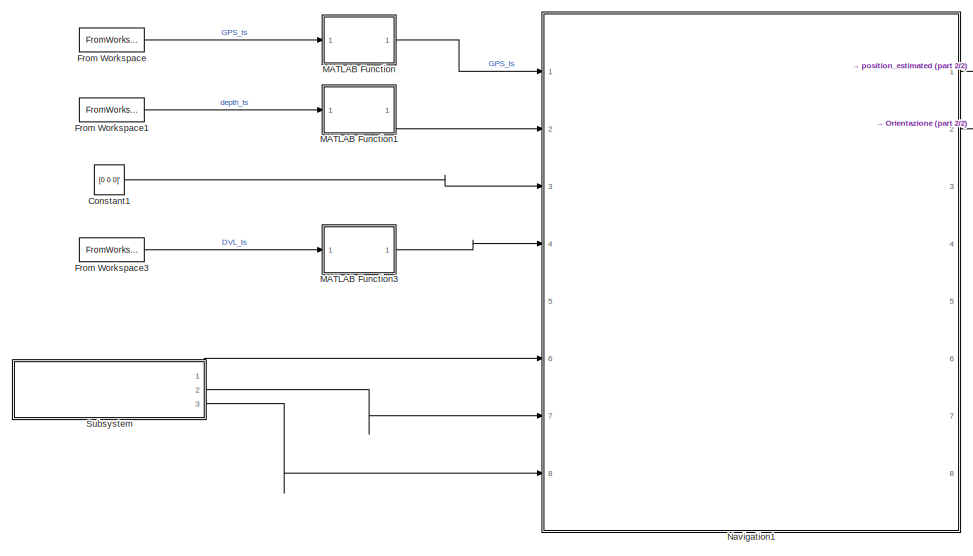
[diagram: root canvas - part 1/2, left side, full height]
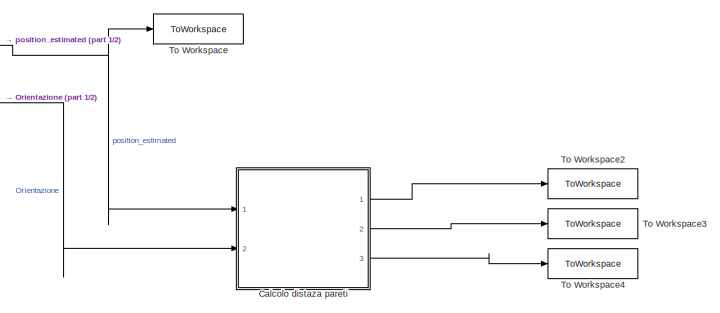
[diagram: root canvas - part 2/2, middle right region]
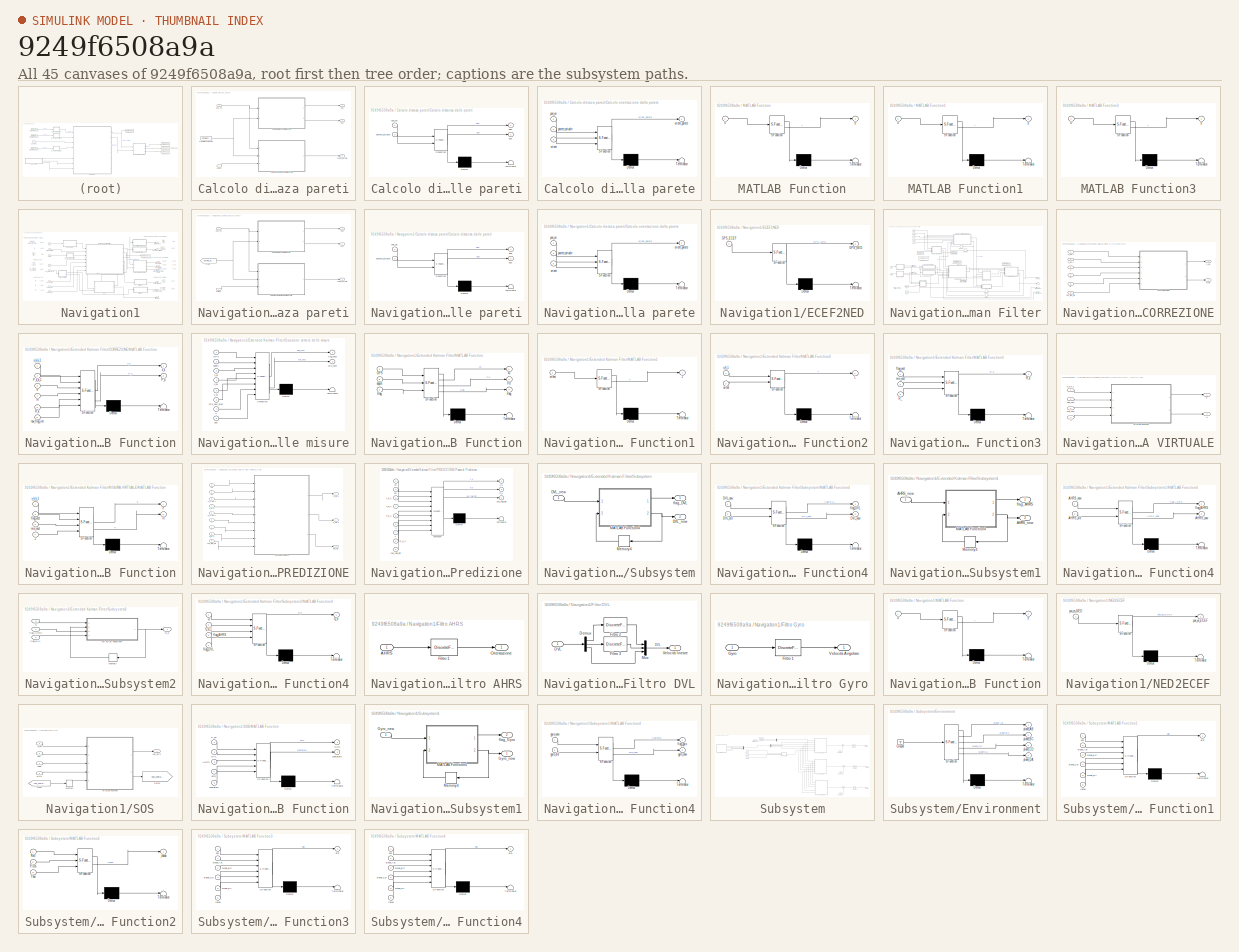
[diagram: thumbnail index - all 45 canvases of the model, root first then tree order]
MODEL slx_9249f6508a9a
KIND model
CONFIG AbsTol = auto
CONFIG EnableMultiTasking = off
CONFIG FixedStep = auto
CONFIG MaxStep = auto
CONFIG MinStep = auto
CONFIG RelTol = 1e-3
CONFIG SampleTimeConstraint = Unconstrained
CONFIG Solver = VariableStepAuto
CONFIG SolverName = VariableStepAuto
CONFIG StartTime = 0.0
CONFIG StopTime = 180
BLOCK [SubSystem] Calcolo distaza pareti
  Ports = [2, 3]
  RequestExecContextInheritance = off
BLOCK [SubSystem] Calcolo distaza pareti/Calcolo distanza dalle pareti
  ErrorFcn = Stateflow.Translate.translate
  PermitHierarchicalResolution = ExplicitOnly
  Ports = [2, 2]
  RequestExecContextInheritance = off
  SFBlockType = MATLAB Function
  TreatAsAtomicUnit = on
BLOCK [Demux] Calcolo distaza pareti/Calcolo distanza dalle pareti/ Demux 
  Outputs = 1
  Ports = [1, 1]
BLOCK [S-Function] Calcolo distaza pareti/Calcolo distanza dalle pareti/ SFunction 
  EnableBusSupport = on
  FunctionName = sf_sfun
  Parameters = nav_giro,nav_plane_AB,nav_plane_BC,nav_plane_CD,nav_plane_DA
  PortCounts = [2 3]
  Ports = [2, 3]
  SFcnIsStateOwnerBlock = off
  SFunctionDeploymentMode = off
  Tag = Stateflow S-Function 17
BLOCK [Terminator] Calcolo distaza pareti/Calcolo distanza dalle pareti/ Terminator 
BLOCK [Outport] Calcolo distaza pareti/Calcolo distanza dalle pareti/dpp
BLOCK [Outport] Calcolo distaza pareti/Calcolo distanza dalle pareti/dps
  Port = 2
BLOCK [Inport] Calcolo distaza pareti/Calcolo distanza dalle pareti/parete_attuale
  Port = 2
BLOCK [Inport] Calcolo distaza pareti/Calcolo distanza dalle pareti/pos_es
BLOCK [SubSystem] Calcolo distaza pareti/Calcolo orientazione dalla parete
  ErrorFcn = Stateflow.Translate.translate
  PermitHierarchicalResolution = ExplicitOnly
  Ports = [3, 1]
  RequestExecContextInheritance = off
  SFBlockType = MATLAB Function
  TreatAsAtomicUnit = on
BLOCK [Demux] Calcolo distaza pareti/Calcolo orientazione dalla parete/ Demux 
  Outputs = 1
  Ports = [1, 1]
BLOCK [S-Function] Calcolo distaza pareti/Calcolo orientazione dalla parete/ SFunction 
  EnableBusSupport = on
  FunctionName = sf_sfun
  Parameters = nav_plane_AB,nav_plane_BC,nav_plane_CD,nav_plane_DA
  PortCounts = [3 2]
  Ports = [3, 2]
  SFcnIsStateOwnerBlock = off
  SFunctionDeploymentMode = off
  Tag = Stateflow S-Function 18
BLOCK [Terminator] Calcolo distaza pareti/Calcolo orientazione dalla parete/ Terminator 
BLOCK [Inport] Calcolo distaza pareti/Calcolo orientazione dalla parete/orient
  Port = 3
BLOCK [Outport] Calcolo distaza pareti/Calcolo orientazione dalla parete/orient_parete
BLOCK [Inport] Calcolo distaza pareti/Calcolo orientazione dalla parete/parete_attuale
  Port = 2
BLOCK [Inport] Calcolo distaza pareti/Calcolo orientazione dalla parete/pos_es
BLOCK [FromWorkspace] Calcolo distaza pareti/From Workspace2
  Interpolate = off
  OutputAfterFinalValue = Holding final value
  SampleTime = -1
  VariableName = par_ts
BLOCK [Outport] Calcolo distaza pareti/dpp
BLOCK [Outport] Calcolo distaza pareti/dps
  Port = 2
BLOCK [Inport] Calcolo distaza pareti/orient
BLOCK [Outport] Calcolo distaza pareti/orient_parete
  Port = 3
BLOCK [Inport] Calcolo distaza pareti/pos_es
  Port = 2
BLOCK [Constant] Constant1
  Value = [0 0 0]'
BLOCK [FromWorkspace] From Workspace
  OutputAfterFinalValue = Setting to zero
  VariableName = GPS_ts
BLOCK [FromWorkspace] From Workspace1
  VariableName = prof_sonar
BLOCK [FromWorkspace] From Workspace3
  Interpolate = off
  OutputAfterFinalValue = Holding final value
  SampleTime = 0.1
  VariableName = DVL_sonar
BLOCK [SubSystem] MATLAB Function
  ErrorFcn = Stateflow.Translate.translate
  PermitHierarchicalResolution = ExplicitOnly
  Ports = [1, 1]
  RequestExecContextInheritance = off
  SFBlockType = MATLAB Function
  SystemSampleTime = 1
  TreatAsAtomicUnit = on
BLOCK [Demux] MATLAB Function/ Demux 
  Outputs = 1
  Ports = [1, 1]
BLOCK [S-Function] MATLAB Function/ SFunction 
  EnableBusSupport = on
  FunctionName = sf_sfun
  PortCounts = [1 2]
  Ports = [1, 2]
  SFcnIsStateOwnerBlock = off
  SFunctionDeploymentMode = off
  Tag = Stateflow S-Function 15
BLOCK [Terminator] MATLAB Function/ Terminator 
BLOCK [Inport] MATLAB Function/u
BLOCK [Outport] MATLAB Function/y
BLOCK [SubSystem] MATLAB Function1
  ErrorFcn = Stateflow.Translate.translate
  PermitHierarchicalResolution = ExplicitOnly
  Ports = [1, 1]
  RequestExecContextInheritance = off
  SFBlockType = MATLAB Function
  SystemSampleTime = nav_DT
  TreatAsAtomicUnit = on
BLOCK [Demux] MATLAB Function1/ Demux 
  Outputs = 1
  Ports = [1, 1]
BLOCK [S-Function] MATLAB Function1/ SFunction 
  EnableBusSupport = on
  FunctionName = sf_sfun
  PortCounts = [1 2]
  Ports = [1, 2]
  SFcnIsStateOwnerBlock = off
  SFunctionDeploymentMode = off
  Tag = Stateflow S-Function 9
BLOCK [Terminator] MATLAB Function1/ Terminator 
BLOCK [Inport] MATLAB Function1/u
BLOCK [Outport] MATLAB Function1/y
BLOCK [SubSystem] MATLAB Function3
  ErrorFcn = Stateflow.Translate.translate
  PermitHierarchicalResolution = ExplicitOnly
  Ports = [1, 1]
  RequestExecContextInheritance = off
  SFBlockType = MATLAB Function
  SystemSampleTime = 0.2
  TreatAsAtomicUnit = on
BLOCK [Demux] MATLAB Function3/ Demux 
  Outputs = 1
  Ports = [1, 1]
BLOCK [S-Function] MATLAB Function3/ SFunction 
  EnableBusSupport = on
  FunctionName = sf_sfun
  PortCounts = [1 2]
  Ports = [1, 2]
  SFcnIsStateOwnerBlock = off
  SFunctionDeploymentMode = off
  Tag = Stateflow S-Function 16
BLOCK [Terminator] MATLAB Function3/ Terminator 
BLOCK [Inport] MATLAB Function3/u
BLOCK [Outport] MATLAB Function3/y
BLOCK [SubSystem] Navigation1
  NameLocation = top
  Ports = [8, 8]
  RequestExecContextInheritance = off
BLOCK [Inport] Navigation1/AHRS
  Port = 3
  PortDimensions = [3 1]
BLOCK [SubSystem] Navigation1/Calcolo distaza pareti
  Ports = [2, 3]
  RequestExecContextInheritance = off
BLOCK [SubSystem] Navigation1/Calcolo distaza pareti/Calcolo distanza dalle pareti
  ErrorFcn = Stateflow.Translate.translate
  PermitHierarchicalResolution = ExplicitOnly
  Ports = [2, 2]
  RequestExecContextInheritance = off
  SFBlockType = MATLAB Function
  TreatAsAtomicUnit = on
BLOCK [Demux] Navigation1/Calcolo distaza pareti/Calcolo distanza dalle pareti/ Demux 
  Outputs = 1
  Ports = [1, 1]
BLOCK [S-Function] Navigation1/Calcolo distaza pareti/Calcolo distanza dalle pareti/ SFunction 
  EnableBusSupport = on
  FunctionName = sf_sfun
  Parameters = nav_giro,nav_plane_AB,nav_plane_BC,nav_plane_CD,nav_plane_DA
  PortCounts = [2 3]
  Ports = [2, 3]
  SFcnIsStateOwnerBlock = off
  SFunctionDeploymentMode = off
  Tag = Stateflow S-Function 1
BLOCK [Terminator] Navigation1/Calcolo distaza pareti/Calcolo distanza dalle pareti/ Terminator 
BLOCK [Outport] Navigation1/Calcolo distaza pareti/Calcolo distanza dalle pareti/dpp
BLOCK [Outport] Navigation1/Calcolo distaza pareti/Calcolo distanza dalle pareti/dps
  Port = 2
BLOCK [Inport] Navigation1/Calcolo distaza pareti/Calcolo distanza dalle pareti/parete_attuale
  Port = 2
BLOCK [Inport] Navigation1/Calcolo distaza pareti/Calcolo distanza dalle pareti/pos_es
BLOCK [SubSystem] Navigation1/Calcolo distaza pareti/Calcolo orientazione dalla parete
  ErrorFcn = Stateflow.Translate.translate
  PermitHierarchicalResolution = ExplicitOnly
  Ports = [3, 1]
  RequestExecContextInheritance = off
  SFBlockType = MATLAB Function
  TreatAsAtomicUnit = on
BLOCK [Demux] Navigation1/Calcolo distaza pareti/Calcolo orientazione dalla parete/ Demux 
  Outputs = 1
  Ports = [1, 1]
BLOCK [S-Function] Navigation1/Calcolo distaza pareti/Calcolo orientazione dalla parete/ SFunction 
  EnableBusSupport = on
  FunctionName = sf_sfun
  Parameters = nav_plane_AB,nav_plane_BC,nav_plane_CD,nav_plane_DA
  PortCounts = [3 2]
  Ports = [3, 2]
  SFcnIsStateOwnerBlock = off
  SFunctionDeploymentMode = off
  Tag = Stateflow S-Function 2
BLOCK [Terminator] Navigation1/Calcolo distaza pareti/Calcolo orientazione dalla parete/ Terminator 
BLOCK [Inport] Navigation1/Calcolo distaza pareti/Calcolo orientazione dalla parete/orient
  Port = 3
BLOCK [Outport] Navigation1/Calcolo distaza pareti/Calcolo orientazione dalla parete/orient_parete
BLOCK [Inport] Navigation1/Calcolo distaza pareti/Calcolo orientazione dalla parete/parete_attuale
  Port = 2
BLOCK [Inport] Navigation1/Calcolo distaza pareti/Calcolo orientazione dalla parete/pos_es
BLOCK [From] Navigation1/Calcolo distaza pareti/From
  GotoTag = parete_attuale
BLOCK [Outport] Navigation1/Calcolo distaza pareti/dpp
BLOCK [Outport] Navigation1/Calcolo distaza pareti/dps
  Port = 2
BLOCK [Inport] Navigation1/Calcolo distaza pareti/orient
BLOCK [Outport] Navigation1/Calcolo distaza pareti/orient_parete
  Port = 3
BLOCK [Inport] Navigation1/Calcolo distaza pareti/pos_es
  Port = 2
BLOCK [Inport] Navigation1/DVL
  Port = 4
  PortDimensions = [3 1]
BLOCK [Outport] Navigation1/Dpp stimata
  Port = 4
  PortDimensions = 1
BLOCK [Outport] Navigation1/Dps stimata
  Port = 5
  PortDimensions = 1
BLOCK [SubSystem] Navigation1/ECEF2NED
  Commented = through
  ErrorFcn = Stateflow.Translate.translate
  PermitHierarchicalResolution = ExplicitOnly
  Ports = [1, 1]
  RequestExecContextInheritance = off
  SFBlockType = MATLAB Function
  TreatAsAtomicUnit = on
BLOCK [Demux] Navigation1/ECEF2NED/ Demux 
  Outputs = 1
  Ports = [1, 1]
BLOCK [S-Function] Navigation1/ECEF2NED/ SFunction 
  EnableBusSupport = on
  FunctionName = sf_sfun
  Parameters = nav_h0,nav_lat0,nav_lon0
  PortCounts = [1 2]
  Ports = [1, 2]
  SFcnIsStateOwnerBlock = off
  SFunctionDeploymentMode = off
  Tag = Stateflow S-Function 3
BLOCK [Terminator] Navigation1/ECEF2NED/ Terminator 
BLOCK [Inport] Navigation1/ECEF2NED/GPS_ECEF
BLOCK [Outport] Navigation1/ECEF2NED/GPS_NED
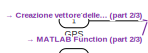
[diagram: Navigation1/Extended Kalman Filter - part 1/3, top left region]
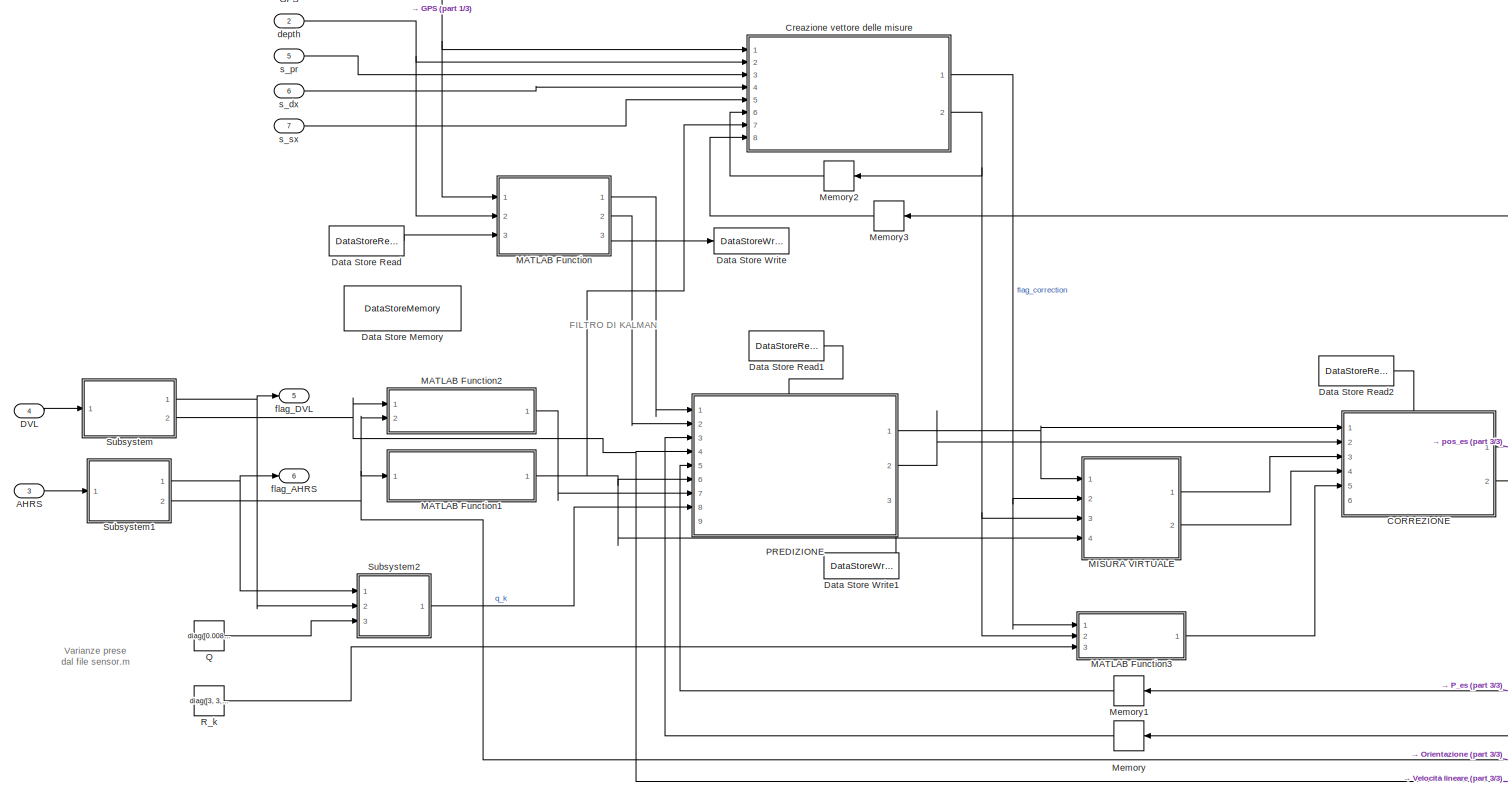
[diagram: Navigation1/Extended Kalman Filter - part 2/3, most of the canvas]
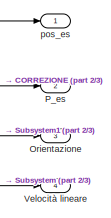
[diagram: Navigation1/Extended Kalman Filter - part 3/3, bottom right region]
BLOCK [SubSystem] Navigation1/Extended Kalman Filter
  PortSchema = {"entries":[{"content":{"sides":[{"content":{"connectorIds":["In1","In2","In3","In4","In5","In6","In7"]},"type":"ConnectorPlacement.EquallySpacedRectSide","uuid":"6efb9e2f-1967-435d-aad2-c67622494962"},{"content":{"connectorIds":["Out1","Out2","Out3","Out4"],"side":"RIGHT"},"type":"ConnectorPlacement.EquallySpacedRectSide","uuid":"5d440599-e5f4-4574-99d4-6d9cc77e4596"},{"content":{"connectorIds":[...<+456ch>
  Ports = [7, 6]
  RequestExecContextInheritance = off
  TreatAsAtomicUnit = on
BLOCK [Inport] Navigation1/Extended Kalman Filter/AHRS
  Port = 3
BLOCK [SubSystem] Navigation1/Extended Kalman Filter/CORREZIONE
  PortSchema = {"entries":[{"content":{"sides":[{"content":{"connectorIds":["In1","In2","In3","In4","In5"]},"type":"ConnectorPlacement.EquallySpacedRectSide","uuid":"44d4b6e6-a4db-4e12-b0bf-41ec8347b107"},{"content":{"connectorIds":["Out1","Out2"],"side":"RIGHT"},"type":"ConnectorPlacement.EquallySpacedRectSide","uuid":"9e6d7b97-2a84-49ec-a092-e75c60e4106f"},{"content":{"connectorIds":["In6"],"side":"TOP"},"type...<+278ch>
  Ports = [6, 2]
  RequestExecContextInheritance = off
BLOCK [Inport] Navigation1/Extended Kalman Filter/CORREZIONE/H
  Port = 4
BLOCK [SubSystem] Navigation1/Extended Kalman Filter/CORREZIONE/MATLAB Function
  ErrorFcn = Stateflow.Translate.translate
  PermitHierarchicalResolution = ExplicitOnly
  Ports = [6, 2]
  RequestExecContextInheritance = off
  SFBlockType = MATLAB Function
  SystemSampleTime = nav_DT
  TreatAsAtomicUnit = on
BLOCK [Demux] Navigation1/Extended Kalman Filter/CORREZIONE/MATLAB Function/ Demux 
  Outputs = 1
  Ports = [1, 1]
BLOCK [S-Function] Navigation1/Extended Kalman Filter/CORREZIONE/MATLAB Function/ SFunction 
  EnableBusSupport = on
  FunctionName = sf_sfun
  PortCounts = [6 3]
  Ports = [6, 3]
  SFcnIsStateOwnerBlock = off
  SFunctionDeploymentMode = off
  Tag = Stateflow S-Function 4
BLOCK [Terminator] Navigation1/Extended Kalman Filter/CORREZIONE/MATLAB Function/ Terminator 
BLOCK [Inport] Navigation1/Extended Kalman Filter/CORREZIONE/MATLAB Function/H
  Port = 4
BLOCK [Outport] Navigation1/Extended Kalman Filter/CORREZIONE/MATLAB Function/P_k
  Port = 2
BLOCK [Inport] Navigation1/Extended Kalman Filter/CORREZIONE/MATLAB Function/P_k_k_1
  Port = 2
BLOCK [Inport] Navigation1/Extended Kalman Filter/CORREZIONE/MATLAB Function/R_k
  Port = 5
BLOCK [Inport] Navigation1/Extended Kalman Filter/CORREZIONE/MATLAB Function/e
  Port = 3
BLOCK [Inport] Navigation1/Extended Kalman Filter/CORREZIONE/MATLAB Function/nav_flag_init
  Port = 6
BLOCK [Outport] Navigation1/Extended Kalman Filter/CORREZIONE/MATLAB Function/x_k
BLOCK [Inport] Navigation1/Extended Kalman Filter/CORREZIONE/MATLAB Function/x_k_k_1
BLOCK [Outport] Navigation1/Extended Kalman Filter/CORREZIONE/P_k|k
  Port = 2
BLOCK [Inport] Navigation1/Extended Kalman Filter/CORREZIONE/P_k|k-1
  Port = 2
BLOCK [Inport] Navigation1/Extended Kalman Filter/CORREZIONE/R
  Port = 5
BLOCK [Inport] Navigation1/Extended Kalman Filter/CORREZIONE/e
  Port = 3
BLOCK [Inport] Navigation1/Extended Kalman Filter/CORREZIONE/nav_flag_init
  Port = 6
BLOCK [Outport] Navigation1/Extended Kalman Filter/CORREZIONE/x_k|k
BLOCK [Inport] Navigation1/Extended Kalman Filter/CORREZIONE/x_k|k-1
BLOCK [SubSystem] Navigation1/Extended Kalman Filter/Creazione vettore delle misure
  ErrorFcn = Stateflow.Translate.translate
  PermitHierarchicalResolution = ExplicitOnly
  Ports = [8, 2]
  RequestExecContextInheritance = off
  SFBlockType = MATLAB Function
  SystemSampleTime = nav_DT
  TreatAsAtomicUnit = on
BLOCK [Demux] Navigation1/Extended Kalman Filter/Creazione vettore delle misure/ Demux 
  Outputs = 1
  Ports = [1, 1]
BLOCK [S-Function] Navigation1/Extended Kalman Filter/Creazione vettore delle misure/ SFunction 
  EnableBusSupport = on
  FunctionName = sf_sfun
  Parameters = distanceFromWall,nav_A,nav_B,nav_C,nav_D,nav_plane_AB,nav_plane_BC,nav_plane_CD,nav_plane_DA
  PortCounts = [8 3]
  Ports = [8, 3]
  SFcnIsStateOwnerBlock = off
  SFunctionDeploymentMode = off
  Tag = Stateflow S-Function 6
BLOCK [Terminator] Navigation1/Extended Kalman Filter/Creazione vettore delle misure/ Terminator 
BLOCK [Inport] Navigation1/Extended Kalman Filter/Creazione vettore delle misure/GPS
BLOCK [Inport] Navigation1/Extended Kalman Filter/Creazione vettore delle misure/J
  Port = 7
BLOCK [Inport] Navigation1/Extended Kalman Filter/Creazione vettore delle misure/depth
  Port = 2
BLOCK [Outport] Navigation1/Extended Kalman Filter/Creazione vettore delle misure/flag_vect
BLOCK [Outport] Navigation1/Extended Kalman Filter/Creazione vettore delle misure/mis_vect
  Port = 2
BLOCK [Inport] Navigation1/Extended Kalman Filter/Creazione vettore delle misure/mis_vect_prec
  Port = 6
BLOCK [Inport] Navigation1/Extended Kalman Filter/Creazione vettore delle misure/pos
  Port = 8
BLOCK [Inport] Navigation1/Extended Kalman Filter/Creazione vettore delle misure/s_dx
  Port = 4
BLOCK [Inport] Navigation1/Extended Kalman Filter/Creazione vettore delle misure/s_pr
  Port = 3
BLOCK [Inport] Navigation1/Extended Kalman Filter/Creazione vettore delle misure/s_sx
  Port = 5
BLOCK [Inport] Navigation1/Extended Kalman Filter/DVL
  Port = 4
BLOCK [DataStoreMemory] Navigation1/Extended Kalman Filter/Data Store Memory
  DataStoreName = nav_flag_init
  ShowAdditionalParam = off
  SignalType = real
BLOCK [DataStoreRead] Navigation1/Extended Kalman Filter/Data Store Read
  DataStoreElements = nav_flag_init
  DataStoreName = nav_flag_init
  Ports = [0, 1]
BLOCK [DataStoreRead] Navigation1/Extended Kalman Filter/Data Store Read1
  DataStoreElements = nav_flag_init
  DataStoreName = nav_flag_init
  Ports = [0, 1]
BLOCK [DataStoreRead] Navigation1/Extended Kalman Filter/Data Store Read2
  DataStoreElements = nav_flag_init
  DataStoreName = nav_flag_init
  Ports = [0, 1]
BLOCK [DataStoreWrite] Navigation1/Extended Kalman Filter/Data Store Write
  DataStoreElements = nav_flag_init
  DataStoreName = nav_flag_init
  Ports = [1]
BLOCK [DataStoreWrite] Navigation1/Extended Kalman Filter/Data Store Write1
  DataStoreElements = nav_flag_init
  DataStoreName = nav_flag_init
  Ports = [1]
BLOCK [Inport] Navigation1/Extended Kalman Filter/GPS
BLOCK [SubSystem] Navigation1/Extended Kalman Filter/MATLAB Function
  ErrorFcn = Stateflow.Translate.translate
  PermitHierarchicalResolution = ExplicitOnly
  Ports = [3, 3]
  RequestExecContextInheritance = off
  SFBlockType = MATLAB Function
  TreatAsAtomicUnit = on
BLOCK [Demux] Navigation1/Extended Kalman Filter/MATLAB Function/ Demux 
  Outputs = 1
  Ports = [1, 1]
BLOCK [S-Function] Navigation1/Extended Kalman Filter/MATLAB Function/ SFunction 
  EnableBusSupport = on
  FunctionName = sf_sfun
  PortCounts = [3 4]
  Ports = [3, 4]
  SFcnIsStateOwnerBlock = off
  SFunctionDeploymentMode = off
  Tag = Stateflow S-Function 7
BLOCK [Terminator] Navigation1/Extended Kalman Filter/MATLAB Function/ Terminator 
BLOCK [Inport] Navigation1/Extended Kalman Filter/MATLAB Function/GPS
BLOCK [Outport] Navigation1/Extended Kalman Filter/MATLAB Function/P0
  Port = 2
BLOCK [Inport] Navigation1/Extended Kalman Filter/MATLAB Function/depth
  Port = 2
BLOCK [Outport] Navigation1/Extended Kalman Filter/MATLAB Function/flag
  Port = 3
BLOCK [Inport] Navigation1/Extended Kalman Filter/MATLAB Function/flag 
  Port = 3
BLOCK [Outport] Navigation1/Extended Kalman Filter/MATLAB Function/x0
BLOCK [SubSystem] Navigation1/Extended Kalman Filter/MATLAB Function1
  ErrorFcn = Stateflow.Translate.translate
  PermitHierarchicalResolution = ExplicitOnly
  Ports = [1, 1]
  RequestExecContextInheritance = off
  SFBlockType = MATLAB Function
  TreatAsAtomicUnit = on
BLOCK [Demux] Navigation1/Extended Kalman Filter/MATLAB Function1/ Demux 
  Outputs = 1
  Ports = [1, 1]
BLOCK [S-Function] Navigation1/Extended Kalman Filter/MATLAB Function1/ SFunction 
  EnableBusSupport = on
  FunctionName = sf_sfun
  PortCounts = [1 2]
  Ports = [1, 2]
  SFcnIsStateOwnerBlock = off
  SFunctionDeploymentMode = off
  Tag = Stateflow S-Function 8
BLOCK [Terminator] Navigation1/Extended Kalman Filter/MATLAB Function1/ Terminator 
BLOCK [Outport] Navigation1/Extended Kalman Filter/MATLAB Function1/J
BLOCK [Inport] Navigation1/Extended Kalman Filter/MATLAB Function1/orient
BLOCK [SubSystem] Navigation1/Extended Kalman Filter/MATLAB Function2
  ErrorFcn = Stateflow.Translate.translate
  PermitHierarchicalResolution = ExplicitOnly
  Ports = [2, 1]
  RequestExecContextInheritance = off
  SFBlockType = MATLAB Function
  TreatAsAtomicUnit = on
BLOCK [Demux] Navigation1/Extended Kalman Filter/MATLAB Function2/ Demux 
  Outputs = 1
  Ports = [1, 1]
BLOCK [S-Function] Navigation1/Extended Kalman Filter/MATLAB Function2/ SFunction 
  EnableBusSupport = on
  FunctionName = sf_sfun
  PortCounts = [2 2]
  Ports = [2, 2]
  SFcnIsStateOwnerBlock = off
  SFunctionDeploymentMode = off
  Tag = Stateflow S-Function 14
BLOCK [Terminator] Navigation1/Extended Kalman Filter/MATLAB Function2/ Terminator 
BLOCK [Outport] Navigation1/Extended Kalman Filter/MATLAB Function2/L
BLOCK [Inport] Navigation1/Extended Kalman Filter/MATLAB Function2/orient
  Port = 2
BLOCK [Inport] Navigation1/Extended Kalman Filter/MATLAB Function2/u_k_1
BLOCK [SubSystem] Navigation1/Extended Kalman Filter/MATLAB Function3
  ErrorFcn = Stateflow.Translate.translate
  PermitHierarchicalResolution = ExplicitOnly
  Ports = [3, 1]
  RequestExecContextInheritance = off
  SFBlockType = MATLAB Function
  SystemSampleTime = nav_DT
  TreatAsAtomicUnit = on
BLOCK [Demux] Navigation1/Extended Kalman Filter/MATLAB Function3/ Demux 
  Outputs = 1
  Ports = [1, 1]
BLOCK [S-Function] Navigation1/Extended Kalman Filter/MATLAB Function3/ SFunction 
  EnableBusSupport = on
  FunctionName = sf_sfun
  PortCounts = [3 2]
  Ports = [3, 2]
  SFcnIsStateOwnerBlock = off
  SFunctionDeploymentMode = off
  Tag = Stateflow S-Function 19
BLOCK [Terminator] Navigation1/Extended Kalman Filter/MATLAB Function3/ Terminator 
BLOCK [Inport] Navigation1/Extended Kalman Filter/MATLAB Function3/R_
  Port = 3
BLOCK [Outport] Navigation1/Extended Kalman Filter/MATLAB Function3/R_k
BLOCK [Inport] Navigation1/Extended Kalman Filter/MATLAB Function3/flag_vect
BLOCK [Inport] Navigation1/Extended Kalman Filter/MATLAB Function3/mis_vect
  Port = 2
BLOCK [SubSystem] Navigation1/Extended Kalman Filter/MISURA VIRTUALE
  Ports = [4, 2]
  RequestExecContextInheritance = off
BLOCK [Outport] Navigation1/Extended Kalman Filter/MISURA VIRTUALE/H
  Port = 2
BLOCK [Inport] Navigation1/Extended Kalman Filter/MISURA VIRTUALE/J
  Port = 4
BLOCK [SubSystem] Navigation1/Extended Kalman Filter/MISURA VIRTUALE/MATLAB Function
  ErrorFcn = Stateflow.Translate.translate
  PermitHierarchicalResolution = ExplicitOnly
  Ports = [4, 2]
  RequestExecContextInheritance = off
  SFBlockType = MATLAB Function
  SystemSampleTime = nav_DT
  TreatAsAtomicUnit = on
BLOCK [Demux] Navigation1/Extended Kalman Filter/MISURA VIRTUALE/MATLAB Function/ Demux 
  Outputs = 1
  Ports = [1, 1]
BLOCK [S-Function] Navigation1/Extended Kalman Filter/MISURA VIRTUALE/MATLAB Function/ SFunction 
  EnableBusSupport = on
  FunctionName = sf_sfun
  Parameters = nav_plane_AB,nav_plane_BC,nav_plane_CD,nav_plane_DA
  PortCounts = [4 3]
  Ports = [4, 3]
  SFcnIsStateOwnerBlock = off
  SFunctionDeploymentMode = off
  Tag = Stateflow S-Function 20
BLOCK [Terminator] Navigation1/Extended Kalman Filter/MISURA VIRTUALE/MATLAB Function/ Terminator 
BLOCK [Outport] Navigation1/Extended Kalman Filter/MISURA VIRTUALE/MATLAB Function/H
  Port = 2
BLOCK [Inport] Navigation1/Extended Kalman Filter/MISURA VIRTUALE/MATLAB Function/J
  Port = 4
BLOCK [Outport] Navigation1/Extended Kalman Filter/MISURA VIRTUALE/MATLAB Function/e
BLOCK [Inport] Navigation1/Extended Kalman Filter/MISURA VIRTUALE/MATLAB Function/flag_vect
  Port = 2
BLOCK [Inport] Navigation1/Extended Kalman Filter/MISURA VIRTUALE/MATLAB Function/mis_vect
  Port = 3
BLOCK [Inport] Navigation1/Extended Kalman Filter/MISURA VIRTUALE/MATLAB Function/x_k_k_1
BLOCK [Outport] Navigation1/Extended Kalman Filter/MISURA VIRTUALE/e
BLOCK [Inport] Navigation1/Extended Kalman Filter/MISURA VIRTUALE/flag_vect
  Port = 2
BLOCK [Inport] Navigation1/Extended Kalman Filter/MISURA VIRTUALE/mis_vect
  Port = 3
BLOCK [Inport] Navigation1/Extended Kalman Filter/MISURA VIRTUALE/x_k|k-1
BLOCK [Memory] Navigation1/Extended Kalman Filter/Memory
BLOCK [Memory] Navigation1/Extended Kalman Filter/Memory1
BLOCK [Memory] Navigation1/Extended Kalman Filter/Memory2
BLOCK [Memory] Navigation1/Extended Kalman Filter/Memory3
BLOCK [Outport] Navigation1/Extended Kalman Filter/Orientazione
  Port = 3
BLOCK [SubSystem] Navigation1/Extended Kalman Filter/PREDIZIONE
  PortSchema = {"entries":[{"content":{"sides":[{"content":{"connectorIds":["In1","In2","In3","In4","In5","In6","In7","In8"]},"type":"ConnectorPlacement.EquallySpacedRectSide","uuid":"afcfc03b-4c18-49df-ab20-1356d76b0e63"},{"content":{"connectorIds":["Out1","Out2"],"side":"RIGHT"},"type":"ConnectorPlacement.EquallySpacedRectSide","uuid":"f068ce64-2e14-41bc-9570-b9ba38e252ee"},{"content":{"connectorIds":["In9"],"...<+446ch>
  Ports = [9, 3]
  RequestExecContextInheritance = off
BLOCK [Inport] Navigation1/Extended Kalman Filter/PREDIZIONE/J
  Port = 6
BLOCK [Inport] Navigation1/Extended Kalman Filter/PREDIZIONE/L
  Port = 7
BLOCK [Inport] Navigation1/Extended Kalman Filter/PREDIZIONE/P0
  Port = 2
BLOCK [Inport] Navigation1/Extended Kalman Filter/PREDIZIONE/P_k-1|k-1
  Port = 5
BLOCK [Outport] Navigation1/Extended Kalman Filter/PREDIZIONE/P_k|k-1
  Port = 2
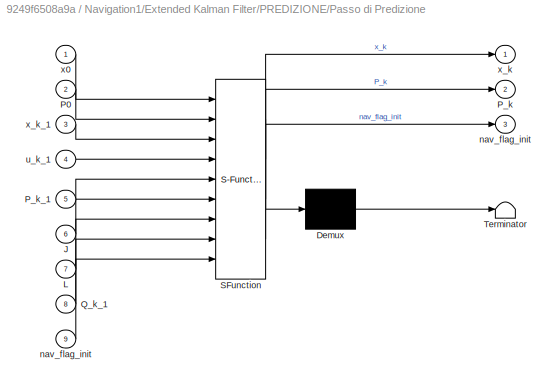
BLOCK [SubSystem] Navigation1/Extended Kalman Filter/PREDIZIONE/Passo di Predizione
  ErrorFcn = Stateflow.Translate.translate
  PermitHierarchicalResolution = ExplicitOnly
  Ports = [9, 3]
  RequestExecContextInheritance = off
  SFBlockType = MATLAB Function
  SystemSampleTime = nav_DT
  TreatAsAtomicUnit = on
BLOCK [Demux] Navigation1/Extended Kalman Filter/PREDIZIONE/Passo di Predizione/ Demux 
  Outputs = 1
  Ports = [1, 1]
BLOCK [S-Function] Navigation1/Extended Kalman Filter/PREDIZIONE/Passo di Predizione/ SFunction 
  EnableBusSupport = on
  FunctionName = sf_sfun
  Parameters = nav_DT
  PortCounts = [9 4]
  Ports = [9, 4]
  SFcnIsStateOwnerBlock = off
  SFunctionDeploymentMode = off
  Tag = Stateflow S-Function 21
BLOCK [Terminator] Navigation1/Extended Kalman Filter/PREDIZIONE/Passo di Predizione/ Terminator 
BLOCK [Inport] Navigation1/Extended Kalman Filter/PREDIZIONE/Passo di Predizione/J
  Port = 6
BLOCK [Inport] Navigation1/Extended Kalman Filter/PREDIZIONE/Passo di Predizione/L
  Port = 7
BLOCK [Inport] Navigation1/Extended Kalman Filter/PREDIZIONE/Passo di Predizione/P0
  Port = 2
BLOCK [Outport] Navigation1/Extended Kalman Filter/PREDIZIONE/Passo di Predizione/P_k
  Port = 2
BLOCK [Inport] Navigation1/Extended Kalman Filter/PREDIZIONE/Passo di Predizione/P_k_1
  Port = 5
BLOCK [Inport] Navigation1/Extended Kalman Filter/PREDIZIONE/Passo di Predizione/Q_k_1
  Port = 8
BLOCK [Outport] Navigation1/Extended Kalman Filter/PREDIZIONE/Passo di Predizione/nav_flag_init
  Port = 3
BLOCK [Inport] Navigation1/Extended Kalman Filter/PREDIZIONE/Passo di Predizione/nav_flag_init 
  Port = 9
BLOCK [Inport] Navigation1/Extended Kalman Filter/PREDIZIONE/Passo di Predizione/u_k_1
  Port = 4
BLOCK [Inport] Navigation1/Extended Kalman Filter/PREDIZIONE/Passo di Predizione/x0
BLOCK [Outport] Navigation1/Extended Kalman Filter/PREDIZIONE/Passo di Predizione/x_k
BLOCK [Inport] Navigation1/Extended Kalman Filter/PREDIZIONE/Passo di Predizione/x_k_1
  Port = 3
BLOCK [Inport] Navigation1/Extended Kalman Filter/PREDIZIONE/Q_k-1
  Port = 8
BLOCK [Outport] Navigation1/Extended Kalman Filter/PREDIZIONE/flag_init
  Port = 3
BLOCK [Inport] Navigation1/Extended Kalman Filter/PREDIZIONE/nav_flag_init
  Port = 9
BLOCK [Inport] Navigation1/Extended Kalman Filter/PREDIZIONE/u_k-1
  Port = 4
BLOCK [Inport] Navigation1/Extended Kalman Filter/PREDIZIONE/x0
BLOCK [Inport] Navigation1/Extended Kalman Filter/PREDIZIONE/x_k-1|k-1
  Port = 3
BLOCK [Outport] Navigation1/Extended Kalman Filter/PREDIZIONE/x_k|k-1
BLOCK [Outport] Navigation1/Extended Kalman Filter/P_es
  Port = 2
BLOCK [Constant] Navigation1/Extended Kalman Filter/Q
  Value = diag([0.0087, 0.0087, 0.0017, (0.012)^2, (0.012)^2, (0.012)^2])
  VectorParams1D = off
BLOCK [Constant] Navigation1/Extended Kalman Filter/R_k
  Value = diag([3, 3, 0.2, 0.05, 0.05, 0.05])
  VectorParams1D = off
BLOCK [SubSystem] Navigation1/Extended Kalman Filter/Subsystem
  Ports = [1, 2]
  RequestExecContextInheritance = off
BLOCK [Inport] Navigation1/Extended Kalman Filter/Subsystem/DVL_new
BLOCK [Outport] Navigation1/Extended Kalman Filter/Subsystem/DVL_now
  Port = 2
BLOCK [SubSystem] Navigation1/Extended Kalman Filter/Subsystem/MATLAB Function4
  ErrorFcn = Stateflow.Translate.translate
  PermitHierarchicalResolution = ExplicitOnly
  Ports = [2, 2]
  RequestExecContextInheritance = off
  SFBlockType = MATLAB Function
  TreatAsAtomicUnit = on
BLOCK [Demux] Navigation1/Extended Kalman Filter/Subsystem/MATLAB Function4/ Demux 
  Outputs = 1
  Ports = [1, 1]
BLOCK [S-Function] Navigation1/Extended Kalman Filter/Subsystem/MATLAB Function4/ SFunction 
  EnableBusSupport = on
  FunctionName = sf_sfun
  PortCounts = [2 3]
  Ports = [2, 3]
  SFcnIsStateOwnerBlock = off
  SFunctionDeploymentMode = off
  Tag = Stateflow S-Function 22
BLOCK [Terminator] Navigation1/Extended Kalman Filter/Subsystem/MATLAB Function4/ Terminator 
BLOCK [Inport] Navigation1/Extended Kalman Filter/Subsystem/MATLAB Function4/DVL_new
BLOCK [Outport] Navigation1/Extended Kalman Filter/Subsystem/MATLAB Function4/DVL_now
  Port = 2
BLOCK [Inport] Navigation1/Extended Kalman Filter/Subsystem/MATLAB Function4/DVL_old
  Port = 2
BLOCK [Outport] Navigation1/Extended Kalman Filter/Subsystem/MATLAB Function4/flag_DVL
BLOCK [Memory] Navigation1/Extended Kalman Filter/Subsystem/Memory4
  NameLocation = top
BLOCK [Outport] Navigation1/Extended Kalman Filter/Subsystem/flag_DVL
BLOCK [SubSystem] Navigation1/Extended Kalman Filter/Subsystem1
  Ports = [1, 2]
  RequestExecContextInheritance = off
BLOCK [Inport] Navigation1/Extended Kalman Filter/Subsystem1/AHRS_new
BLOCK [Outport] Navigation1/Extended Kalman Filter/Subsystem1/AHRS_now
  Port = 2
BLOCK [SubSystem] Navigation1/Extended Kalman Filter/Subsystem1/MATLAB Function4
  ErrorFcn = Stateflow.Translate.translate
  PermitHierarchicalResolution = ExplicitOnly
  Ports = [2, 2]
  RequestExecContextInheritance = off
  SFBlockType = MATLAB Function
  TreatAsAtomicUnit = on
BLOCK [Demux] Navigation1/Extended Kalman Filter/Subsystem1/MATLAB Function4/ Demux 
  Outputs = 1
  Ports = [1, 1]
BLOCK [S-Function] Navigation1/Extended Kalman Filter/Subsystem1/MATLAB Function4/ SFunction 
  EnableBusSupport = on
  FunctionName = sf_sfun
  PortCounts = [2 3]
  Ports = [2, 3]
  SFcnIsStateOwnerBlock = off
  SFunctionDeploymentMode = off
  Tag = Stateflow S-Function 23
BLOCK [Terminator] Navigation1/Extended Kalman Filter/Subsystem1/MATLAB Function4/ Terminator 
BLOCK [Inport] Navigation1/Extended Kalman Filter/Subsystem1/MATLAB Function4/AHRS_new
BLOCK [Outport] Navigation1/Extended Kalman Filter/Subsystem1/MATLAB Function4/AHRS_now
  Port = 2
BLOCK [Inport] Navigation1/Extended Kalman Filter/Subsystem1/MATLAB Function4/AHRS_old
  Port = 2
BLOCK [Outport] Navigation1/Extended Kalman Filter/Subsystem1/MATLAB Function4/flag_AHRS
BLOCK [Memory] Navigation1/Extended Kalman Filter/Subsystem1/Memory4
  NameLocation = top
BLOCK [Outport] Navigation1/Extended Kalman Filter/Subsystem1/flag_AHRS
BLOCK [SubSystem] Navigation1/Extended Kalman Filter/Subsystem2
  Ports = [3, 1]
  RequestExecContextInheritance = off
BLOCK [SubSystem] Navigation1/Extended Kalman Filter/Subsystem2/MATLAB Function4
  ErrorFcn = Stateflow.Translate.translate
  PermitHierarchicalResolution = ExplicitOnly
  Ports = [4, 1]
  RequestExecContextInheritance = off
  SFBlockType = MATLAB Function
  TreatAsAtomicUnit = on
BLOCK [Demux] Navigation1/Extended Kalman Filter/Subsystem2/MATLAB Function4/ Demux 
  Outputs = 1
  Ports = [1, 1]
BLOCK [S-Function] Navigation1/Extended Kalman Filter/Subsystem2/MATLAB Function4/ SFunction 
  EnableBusSupport = on
  FunctionName = sf_sfun
  PortCounts = [4 2]
  Ports = [4, 2]
  SFcnIsStateOwnerBlock = off
  SFunctionDeploymentMode = off
  Tag = Stateflow S-Function 24
BLOCK [Terminator] Navigation1/Extended Kalman Filter/Subsystem2/MATLAB Function4/ Terminator 
BLOCK [Inport] Navigation1/Extended Kalman Filter/Subsystem2/MATLAB Function4/Q
BLOCK [Outport] Navigation1/Extended Kalman Filter/Subsystem2/MATLAB Function4/Q_k
BLOCK [Inport] Navigation1/Extended Kalman Filter/Subsystem2/MATLAB Function4/Q_k_1
  Port = 2
BLOCK [Inport] Navigation1/Extended Kalman Filter/Subsystem2/MATLAB Function4/flag_AHRS
  Port = 3
BLOCK [Inport] Navigation1/Extended Kalman Filter/Subsystem2/MATLAB Function4/flag_DVL
  Port = 4
BLOCK [Memory] Navigation1/Extended Kalman Filter/Subsystem2/Memory
  NameLocation = top
BLOCK [Inport] Navigation1/Extended Kalman Filter/Subsystem2/Q
  Port = 3
BLOCK [Outport] Navigation1/Extended Kalman Filter/Subsystem2/Q_k
BLOCK [Inport] Navigation1/Extended Kalman Filter/Subsystem2/flag_AHRS
BLOCK [Inport] Navigation1/Extended Kalman Filter/Subsystem2/flag_DVL
  Port = 2
BLOCK [Outport] Navigation1/Extended Kalman Filter/Velocità lineare
  Port = 4
BLOCK [Inport] Navigation1/Extended Kalman Filter/depth
  Port = 2
BLOCK [Outport] Navigation1/Extended Kalman Filter/flag_AHRS
  Port = 6
BLOCK [Outport] Navigation1/Extended Kalman Filter/flag_DVL
  Port = 5
BLOCK [Outport] Navigation1/Extended Kalman Filter/pos_es
BLOCK [Inport] Navigation1/Extended Kalman Filter/s_dx
  Port = 6
BLOCK [Inport] Navigation1/Extended Kalman Filter/s_pr
  Port = 5
BLOCK [Inport] Navigation1/Extended Kalman Filter/s_sx
  Port = 7
BLOCK [SubSystem] Navigation1/Filtro AHRS
  Ports = [1, 1]
  RequestExecContextInheritance = off
BLOCK [Inport] Navigation1/Filtro AHRS/AHRS
BLOCK [DiscreteFir] Navigation1/Filtro AHRS/Filtro 1
  Coefficients = [0.2 0.2 0.2 0.1 0.1 0.1 0.1]
  InputPortMap = u0
  OutputPortMap = o0
  Ports = [1, 1]
  SampleTime = 0.1
BLOCK [Outport] Navigation1/Filtro AHRS/Orientazione
BLOCK [SubSystem] Navigation1/Filtro DVL
  Ports = [1, 1]
  RequestExecContextInheritance = off
BLOCK [Inport] Navigation1/Filtro DVL/DVL
BLOCK [Demux] Navigation1/Filtro DVL/Demux
  Outputs = 3
  Ports = [1, 3]
BLOCK [DiscreteFir] Navigation1/Filtro DVL/Filtro 2
  Coefficients = [0.3 0.3 0.2 0.2]
  InputPortMap = u0
  OutputPortMap = o0
  Ports = [1, 1]
  SampleTime = 0.1
BLOCK [DiscreteFir] Navigation1/Filtro DVL/Filtro 3
  Coefficients = [0.3 0.3 0.2 0.2]
  InputPortMap = u0
  OutputPortMap = o0
  Ports = [1, 1]
  SampleTime = 0.1
BLOCK [Mux] Navigation1/Filtro DVL/Mux
  DisplayOption = bar
  Inputs = 3
  Ports = [3, 1]
BLOCK [Outport] Navigation1/Filtro DVL/Velocità lineare
BLOCK [SubSystem] Navigation1/Filtro Gyro
  Ports = [1, 1]
  RequestExecContextInheritance = off
BLOCK [DiscreteFir] Navigation1/Filtro Gyro/Filtro 1
  Coefficients = [0.9 0.05 0.05]
  InputPortMap = u0
  OutputPortMap = o0
  Ports = [1, 1]
  SampleTime = 0.1
BLOCK [Inport] Navigation1/Filtro Gyro/Gyro
BLOCK [Outport] Navigation1/Filtro Gyro/Velocità Angolare
BLOCK [Inport] Navigation1/GPS
  PortDimensions = [3 1]
BLOCK [SubSystem] Navigation1/MATLAB Function
  ErrorFcn = Stateflow.Translate.translate
  NameLocation = top
  PermitHierarchicalResolution = ExplicitOnly
  Ports = [1, 1]
  RequestExecContextInheritance = off
  SFBlockType = MATLAB Function
  TreatAsAtomicUnit = on
BLOCK [Demux] Navigation1/MATLAB Function/ Demux 
  Outputs = 1
  Ports = [1, 1]
BLOCK [S-Function] Navigation1/MATLAB Function/ SFunction 
  EnableBusSupport = on
  FunctionName = sf_sfun
  PortCounts = [1 2]
  Ports = [1, 2]
  SFcnIsStateOwnerBlock = off
  SFunctionDeploymentMode = off
  Tag = Stateflow S-Function 25
BLOCK [Terminator] Navigation1/MATLAB Function/ Terminator 
BLOCK [Inport] Navigation1/MATLAB Function/u
BLOCK [Outport] Navigation1/MATLAB Function/y
BLOCK [SubSystem] Navigation1/NED2ECEF
  Commented = through
  ErrorFcn = Stateflow.Translate.translate
  PermitHierarchicalResolution = ExplicitOnly
  Ports = [1, 1]
  RequestExecContextInheritance = off
  SFBlockType = MATLAB Function
  TreatAsAtomicUnit = on
BLOCK [Demux] Navigation1/NED2ECEF/ Demux 
  Outputs = 1
  Ports = [1, 1]
BLOCK [S-Function] Navigation1/NED2ECEF/ SFunction 
  EnableBusSupport = on
  FunctionName = sf_sfun
  Parameters = nav_h0,nav_lat0,nav_lon0
  PortCounts = [1 2]
  Ports = [1, 2]
  SFcnIsStateOwnerBlock = off
  SFunctionDeploymentMode = off
  Tag = Stateflow S-Function 26
BLOCK [Terminator] Navigation1/NED2ECEF/ Terminator 
BLOCK [Outport] Navigation1/NED2ECEF/pos_es_ECEF
BLOCK [Inport] Navigation1/NED2ECEF/pos_es_NED
BLOCK [Outport] Navigation1/Orientazione
  Port = 2
  PortDimensions = [3 1]
BLOCK [Outport] Navigation1/Orientazione parete stimata
  Port = 6
  PortDimensions = 1
BLOCK [Outport] Navigation1/Posizione stimata
  PortDimensions = [3 1]
BLOCK [SubSystem] Navigation1/SOS
  Ports = [4, 1]
  RequestExecContextInheritance = off
BLOCK [Inport] Navigation1/SOS/AHRS
BLOCK [Inport] Navigation1/SOS/DVL
  Port = 2
BLOCK [From] Navigation1/SOS/From
  GotoTag = nav_contatore
  TagVisibility = global
BLOCK [Goto] Navigation1/SOS/Goto1
  GotoTag = nav_contatore
  TagVisibility = global
BLOCK [Inport] Navigation1/SOS/Gyro
  Port = 4
BLOCK [SubSystem] Navigation1/SOS/MATLAB Function
  ErrorFcn = Stateflow.Translate.translate
  PermitHierarchicalResolution = ExplicitOnly
  Ports = [5, 2]
  RequestExecContextInheritance = off
  SFBlockType = MATLAB Function
  SystemSampleTime = nav_DT
  TreatAsAtomicUnit = on
BLOCK [Demux] Navigation1/SOS/MATLAB Function/ Demux 
  Outputs = 1
  Ports = [1, 1]
BLOCK [S-Function] Navigation1/SOS/MATLAB Function/ SFunction 
  EnableBusSupport = on
  FunctionName = sf_sfun
  PortCounts = [5 3]
  Ports = [5, 3]
  SFcnIsStateOwnerBlock = off
  SFunctionDeploymentMode = off
  Tag = Stateflow S-Function 27
BLOCK [Terminator] Navigation1/SOS/MATLAB Function/ Terminator 
BLOCK [Inport] Navigation1/SOS/MATLAB Function/AHRS
  Port = 3
BLOCK [Inport] Navigation1/SOS/MATLAB Function/DVL
  Port = 2
BLOCK [Inport] Navigation1/SOS/MATLAB Function/P_es
BLOCK [Outport] Navigation1/SOS/MATLAB Function/SOS
BLOCK [Outport] Navigation1/SOS/MATLAB Function/contatore
  Port = 2
BLOCK [Inport] Navigation1/SOS/MATLAB Function/contatore 
  Port = 5
BLOCK [Inport] Navigation1/SOS/MATLAB Function/gyro
  Port = 4
BLOCK [Memory] Navigation1/SOS/Memory
BLOCK [Inport] Navigation1/SOS/P_es
  Port = 3
BLOCK [Outport] Navigation1/SOS/nav_SOS
BLOCK [SubSystem] Navigation1/Subsystem1
  Ports = [1, 2]
  RequestExecContextInheritance = off
BLOCK [Inport] Navigation1/Subsystem1/Gyro_new
BLOCK [Outport] Navigation1/Subsystem1/Gyro_now
BLOCK [SubSystem] Navigation1/Subsystem1/MATLAB Function4
  ErrorFcn = Stateflow.Translate.translate
  PermitHierarchicalResolution = ExplicitOnly
  Ports = [2, 2]
  RequestExecContextInheritance = off
  SFBlockType = MATLAB Function
  TreatAsAtomicUnit = on
BLOCK [Demux] Navigation1/Subsystem1/MATLAB Function4/ Demux 
  Outputs = 1
  Ports = [1, 1]
BLOCK [S-Function] Navigation1/Subsystem1/MATLAB Function4/ SFunction 
  EnableBusSupport = on
  FunctionName = sf_sfun
  PortCounts = [2 3]
  Ports = [2, 3]
  SFcnIsStateOwnerBlock = off
  SFunctionDeploymentMode = off
  Tag = Stateflow S-Function 28
BLOCK [Terminator] Navigation1/Subsystem1/MATLAB Function4/ Terminator 
BLOCK [Outport] Navigation1/Subsystem1/MATLAB Function4/flag_gyro
BLOCK [Inport] Navigation1/Subsystem1/MATLAB Function4/gyro_new
BLOCK [Outport] Navigation1/Subsystem1/MATLAB Function4/gyro_now
  Port = 2
BLOCK [Inport] Navigation1/Subsystem1/MATLAB Function4/gyro_old
  Port = 2
BLOCK [Memory] Navigation1/Subsystem1/Memory4
  NameLocation = top
BLOCK [Outport] Navigation1/Subsystem1/flag_Gyro
  Port = 2
BLOCK [ToWorkspace] Navigation1/To Workspace
  FixptAsFi = on
  MaxDataPoints = inf
  Ports = [1]
  SampleTime = -1
  SaveFormat = Timeseries
  VariableName = P_es
BLOCK [Inport] Navigation1/Vel_ang_gyro
  Port = 5
  PortDimensions = [3 1]
BLOCK [Outport] Navigation1/Velocità angolare
  Port = 7
  PortDimensions = [3 1]
BLOCK [Outport] Navigation1/Velocità lineare
  Port = 3
  PortDimensions = [3 1]
BLOCK [Outport] Navigation1/flag SOS
  Port = 8
  PortDimensions = 1
BLOCK [Inport] Navigation1/profondimetro
  Port = 2
  PortDimensions = 1
BLOCK [Inport] Navigation1/sonar_dx
  Port = 7
  PortDimensions = 1
BLOCK [Inport] Navigation1/sonar_prua
  Port = 6
  PortDimensions = 1
BLOCK [Inport] Navigation1/sonar_sx
  Port = 8
  PortDimensions = 1
BLOCK [SubSystem] Subsystem
  Ports = [0, 3]
  RequestExecContextInheritance = off
BLOCK [RandomNumber] Subsystem/ WN Sonar Prua 
  SampleTime = 0.5
  Seed = 1234
  Variance = 0.05
BLOCK [RandomNumber] Subsystem/ WN Sonar Prua 1
  SampleTime = 0.5
  Seed = 1234
  Variance = 0.05
BLOCK [RandomNumber] Subsystem/ WN Sonar Prua 2
  SampleTime = 0.5
  Seed = 1234
  Variance = 0.05
BLOCK [Constant] Subsystem/Constant
  Value = 0
BLOCK [Constant] Subsystem/Constant1
  Value = 0
BLOCK [Constant] Subsystem/Constant2
  Value = 0
BLOCK [Demux] Subsystem/Demux3
  Ports = [1, 4]
BLOCK [SubSystem] Subsystem/Environment
  ErrorFcn = Stateflow.Translate.translate
  PermitHierarchicalResolution = ExplicitOnly
  Ports = [0, 4]
  RequestExecContextInheritance = off
  SFBlockType = MATLAB Function
  TreatAsAtomicUnit = on
BLOCK [Demux] Subsystem/Environment/ Demux 
  Outputs = 1
  Ports = [1, 1]
BLOCK [Ground] Subsystem/Environment/ Ground 
BLOCK [S-Function] Subsystem/Environment/ SFunction 
  EnableBusSupport = on
  FunctionName = sf_sfun
  PortCounts = [1 5]
  Ports = [1, 5]
  SFcnIsStateOwnerBlock = off
  SFunctionDeploymentMode = off
  Tag = Stateflow S-Function 5
BLOCK [Terminator] Subsystem/Environment/ Terminator 
BLOCK [Outport] Subsystem/Environment/plane_AB
BLOCK [Outport] Subsystem/Environment/plane_BC
  Port = 2
BLOCK [Outport] Subsystem/Environment/plane_CD
  Port = 3
BLOCK [Outport] Subsystem/Environment/plane_DA
  Port = 4
BLOCK [FromWorkspace] Subsystem/From Workspace
  SampleTime = 0.1
  VariableName = xt
BLOCK [FromWorkspace] Subsystem/From Workspace1
  SampleTime = 0.1
  VariableName = yt
BLOCK [SubSystem] Subsystem/MATLAB Function1
  ErrorFcn = Stateflow.Translate.translate
  PermitHierarchicalResolution = ExplicitOnly
  Ports = [6, 1]
  RequestExecContextInheritance = off
  SFBlockType = MATLAB Function
  SystemSampleTime = 1
  TreatAsAtomicUnit = on
BLOCK [Demux] Subsystem/MATLAB Function1/ Demux 
  Outputs = 1
  Ports = [1, 1]
BLOCK [S-Function] Subsystem/MATLAB Function1/ SFunction 
  EnableBusSupport = on
  FunctionName = sf_sfun
  PortCounts = [6 2]
  Ports = [6, 2]
  SFcnIsStateOwnerBlock = off
  SFunctionDeploymentMode = off
  Tag = Stateflow S-Function 10
BLOCK [Terminator] Subsystem/MATLAB Function1/ Terminator 
BLOCK [Outport] Subsystem/MATLAB Function1/dist
BLOCK [Inport] Subsystem/MATLAB Function1/jacob
  Port = 6
BLOCK [Inport] Subsystem/MATLAB Function1/plane_AB
  Port = 2
BLOCK [Inport] Subsystem/MATLAB Function1/plane_BC
  Port = 3
BLOCK [Inport] Subsystem/MATLAB Function1/plane_CD
  Port = 4
BLOCK [Inport] Subsystem/MATLAB Function1/plane_DA
  Port = 5
BLOCK [Inport] Subsystem/MATLAB Function1/pos
BLOCK [SubSystem] Subsystem/MATLAB Function2
  ErrorFcn = Stateflow.Translate.translate
  PermitHierarchicalResolution = ExplicitOnly
  Ports = [3, 1]
  RequestExecContextInheritance = off
  SFBlockType = MATLAB Function
  TreatAsAtomicUnit = on
BLOCK [Demux] Subsystem/MATLAB Function2/ Demux 
  Outputs = 1
  Ports = [1, 1]
BLOCK [S-Function] Subsystem/MATLAB Function2/ SFunction 
  EnableBusSupport = on
  FunctionName = sf_sfun
  PortCounts = [3 2]
  Ports = [3, 2]
  SFcnIsStateOwnerBlock = off
  SFunctionDeploymentMode = off
  Tag = Stateflow S-Function 12
BLOCK [Terminator] Subsystem/MATLAB Function2/ Terminator 
BLOCK [Inport] Subsystem/MATLAB Function2/Pitch
  Port = 2
BLOCK [Inport] Subsystem/MATLAB Function2/Roll
BLOCK [Inport] Subsystem/MATLAB Function2/Yaw
  Port = 3
BLOCK [Outport] Subsystem/MATLAB Function2/jacob
BLOCK [SubSystem] Subsystem/MATLAB Function3
  ErrorFcn = Stateflow.Translate.translate
  PermitHierarchicalResolution = ExplicitOnly
  Ports = [6, 1]
  RequestExecContextInheritance = off
  SFBlockType = MATLAB Function
  SystemSampleTime = 1
  TreatAsAtomicUnit = on
BLOCK [Demux] Subsystem/MATLAB Function3/ Demux 
  Outputs = 1
  Ports = [1, 1]
BLOCK [S-Function] Subsystem/MATLAB Function3/ SFunction 
  EnableBusSupport = on
  FunctionName = sf_sfun
  PortCounts = [6 2]
  Ports = [6, 2]
  SFcnIsStateOwnerBlock = off
  SFunctionDeploymentMode = off
  Tag = Stateflow S-Function 11
BLOCK [Terminator] Subsystem/MATLAB Function3/ Terminator 
BLOCK [Outport] Subsystem/MATLAB Function3/dist
BLOCK [Inport] Subsystem/MATLAB Function3/jacob
  Port = 6
BLOCK [Inport] Subsystem/MATLAB Function3/plane_AB
  Port = 2
BLOCK [Inport] Subsystem/MATLAB Function3/plane_BC
  Port = 3
BLOCK [Inport] Subsystem/MATLAB Function3/plane_CD
  Port = 4
BLOCK [Inport] Subsystem/MATLAB Function3/plane_DA
  Port = 5
BLOCK [Inport] Subsystem/MATLAB Function3/pos
BLOCK [SubSystem] Subsystem/MATLAB Function4
  ErrorFcn = Stateflow.Translate.translate
  PermitHierarchicalResolution = ExplicitOnly
  Ports = [6, 1]
  RequestExecContextInheritance = off
  SFBlockType = MATLAB Function
  SystemSampleTime = 1
  TreatAsAtomicUnit = on
BLOCK [Demux] Subsystem/MATLAB Function4/ Demux 
  Outputs = 1
  Ports = [1, 1]
BLOCK [S-Function] Subsystem/MATLAB Function4/ SFunction 
  EnableBusSupport = on
  FunctionName = sf_sfun
  PortCounts = [6 2]
  Ports = [6, 2]
  SFcnIsStateOwnerBlock = off
  SFunctionDeploymentMode = off
  Tag = Stateflow S-Function 13
BLOCK [Terminator] Subsystem/MATLAB Function4/ Terminator 
BLOCK [Outport] Subsystem/MATLAB Function4/dist
BLOCK [Inport] Subsystem/MATLAB Function4/jacob
  Port = 6
BLOCK [Inport] Subsystem/MATLAB Function4/plane_AB
  Port = 2
BLOCK [Inport] Subsystem/MATLAB Function4/plane_BC
  Port = 3
BLOCK [Inport] Subsystem/MATLAB Function4/plane_CD
  Port = 4
BLOCK [Inport] Subsystem/MATLAB Function4/plane_DA
  Port = 5
BLOCK [Inport] Subsystem/MATLAB Function4/pos
BLOCK [Mux] Subsystem/Mux
  DisplayOption = bar
  Inputs = 2
  Ports = [2, 1]
BLOCK [Mux] Subsystem/Mux1
  DisplayOption = bar
  Ports = [4, 1]
BLOCK [Quantizer] Subsystem/Quantizer
  LinearizeAsGain = off
  QuantizationInterval = 0.02
BLOCK [Quantizer] Subsystem/Quantizer1
  LinearizeAsGain = off
  QuantizationInterval = 0.02
BLOCK [Quantizer] Subsystem/Quantizer2
  LinearizeAsGain = off
  QuantizationInterval = 0.02
BLOCK [Outport] Subsystem/Sonar Prua
BLOCK [Outport] Subsystem/Sonar dx
  Port = 2
BLOCK [Outport] Subsystem/Sonar sx
  Port = 3
BLOCK [Sum] Subsystem/Sum1
  Inputs = |++
  Ports = [2, 1]
BLOCK [Sum] Subsystem/Sum2
  Inputs = |++
  Ports = [2, 1]
BLOCK [Sum] Subsystem/Sum3
  Inputs = |++
  Ports = [2, 1]
BLOCK [ToWorkspace] To Workspace
  FixptAsFi = on
  MaxDataPoints = inf
  Ports = [1]
  SampleTime = -1
  SaveFormat = Timeseries
  VariableName = pos_es
BLOCK [ToWorkspace] To Workspace2
  FixptAsFi = on
  MaxDataPoints = inf
  Ports = [1]
  SampleTime = -1
  SaveFormat = Timeseries
  VariableName = dpp
BLOCK [ToWorkspace] To Workspace3
  FixptAsFi = on
  MaxDataPoints = inf
  Ports = [1]
  SampleTime = -1
  SaveFormat = Timeseries
  VariableName = dps
BLOCK [ToWorkspace] To Workspace4
  FixptAsFi = on
  MaxDataPoints = inf
  Ports = [1]
  SampleTime = -1
  SaveFormat = Timeseries
  VariableName = orient_parete
ANNOTATION Navigation1: R [rad] P [rad] Y [rad]
ANNOTATION Navigation1: BODY
ANNOTATION Navigation1: DISTANZA DALLE PARETI Stimata
ANNOTATION Navigation1: ECEF
ANNOTATION Navigation1: Lat [gradi] Long [gradi] flag data_valid
ANNOTATION Navigation1: Misure dai sonar
ANNOTATION Navigation1: NED
ANNOTATION Navigation1: Vettore POSIZIONE & ORIENTAZIONE
ANNOTATION Navigation1: Vettore POSIZIONE & ORIENTAZIONE Stimata
ANNOTATION Navigation1: Vettore VELOCITA'
ANNOTATION Navigation1: Vettore VELOCITA' Stimata
ANNOTATION Navigation1: [m]
ANNOTATION Navigation1: dpp [m]
ANNOTATION Navigation1: lat [gradi] long [gradi] depth [m]
ANNOTATION Navigation1: orientazione [deg]
ANNOTATION Navigation1: scalar
ANNOTATION Navigation1: va_R [m/s] va_P [m/s] va_Y [ m/s]
ANNOTATION Navigation1: va_R [rad/s] va_P [rad/s] va_Y [rad/s]
ANNOTATION Navigation1: vx [m/s] vy [m/s] vx [m/s]
ANNOTATION Navigation1: vx [m/s] vy [m/s] vz [m/s]
ANNOTATION Navigation1/Extended Kalman Filter: FILTRO DI KALMAN
ANNOTATION Navigation1/Extended Kalman Filter: Varianze prese dal file sensor.m
LINE Calcolo distaza pareti/Calcolo distanza dalle pareti:1 -> Calcolo distaza pareti/dpp:1
LINE Calcolo distaza pareti/Calcolo distanza dalle pareti:2 -> Calcolo distaza pareti/dps:1
LINE Calcolo distaza pareti/Calcolo orientazione dalla parete:1 -> Calcolo distaza pareti/orient_parete:1
NET Calcolo distaza pareti/From Workspace2:1 -> Calcolo distaza pareti/Calcolo distanza dalle pareti:2, Calcolo distaza pareti/Calcolo orientazione dalla parete:2
LINE Calcolo distaza pareti/orient:1 -> Calcolo distaza pareti/Calcolo orientazione dalla parete:3
NET Calcolo distaza pareti/pos_es:1 -> Calcolo distaza pareti/Calcolo distanza dalle pareti:1, Calcolo distaza pareti/Calcolo orientazione dalla parete:1
LINE Calcolo distaza pareti:1 -> To Workspace2:1
LINE Calcolo distaza pareti:2 -> To Workspace3:1
LINE Calcolo distaza pareti:3 -> To Workspace4:1
LINE Constant1:1 -> Navigation1:3
LINE From Workspace1:1 -> MATLAB Function1:1
LINE From Workspace3:1 -> MATLAB Function3:1
LINE From Workspace:1 -> MATLAB Function:1
LINE MATLAB Function1:1 -> Navigation1:2
LINE MATLAB Function3:1 -> Navigation1:4
LINE MATLAB Function:1 -> Navigation1:1
LINE Navigation1/AHRS:1 -> Navigation1/MATLAB Function:1
LINE Navigation1/Calcolo distaza pareti/Calcolo distanza dalle pareti:1 -> Navigation1/Calcolo distaza pareti/dpp:1
LINE Navigation1/Calcolo distaza pareti/Calcolo distanza dalle pareti:2 -> Navigation1/Calcolo distaza pareti/dps:1
LINE Navigation1/Calcolo distaza pareti/Calcolo orientazione dalla parete:1 -> Navigation1/Calcolo distaza pareti/orient_parete:1
NET Navigation1/Calcolo distaza pareti/From:1 -> Navigation1/Calcolo distaza pareti/Calcolo distanza dalle pareti:2, Navigation1/Calcolo distaza pareti/Calcolo orientazione dalla parete:2
LINE Navigation1/Calcolo distaza pareti/orient:1 -> Navigation1/Calcolo distaza pareti/Calcolo orientazione dalla parete:3
NET Navigation1/Calcolo distaza pareti/pos_es:1 -> Navigation1/Calcolo distaza pareti/Calcolo distanza dalle pareti:1, Navigation1/Calcolo distaza pareti/Calcolo orientazione dalla parete:1
LINE Navigation1/Calcolo distaza pareti:1 -> Navigation1/Dpp stimata:1
LINE Navigation1/Calcolo distaza pareti:2 -> Navigation1/Dps stimata:1
LINE Navigation1/Calcolo distaza pareti:3 -> Navigation1/Orientazione parete stimata:1
LINE Navigation1/DVL:1 -> Navigation1/Extended Kalman Filter:4
LINE Navigation1/ECEF2NED:1 -> Navigation1/Extended Kalman Filter:1
LINE Navigation1/Extended Kalman Filter/AHRS:1 -> Navigation1/Extended Kalman Filter/Subsystem1:1
LINE Navigation1/Extended Kalman Filter/CORREZIONE/H:1 -> Navigation1/Extended Kalman Filter/CORREZIONE/MATLAB Function:4
LINE Navigation1/Extended Kalman Filter/CORREZIONE/MATLAB Function:1 -> Navigation1/Extended Kalman Filter/CORREZIONE/x_k|k:1
LINE Navigation1/Extended Kalman Filter/CORREZIONE/MATLAB Function:2 -> Navigation1/Extended Kalman Filter/CORREZIONE/P_k|k:1
LINE Navigation1/Extended Kalman Filter/CORREZIONE/P_k|k-1:1 -> Navigation1/Extended Kalman Filter/CORREZIONE/MATLAB Function:2
LINE Navigation1/Extended Kalman Filter/CORREZIONE/R:1 -> Navigation1/Extended Kalman Filter/CORREZIONE/MATLAB Function:5
LINE Navigation1/Extended Kalman Filter/CORREZIONE/e:1 -> Navigation1/Extended Kalman Filter/CORREZIONE/MATLAB Function:3
LINE Navigation1/Extended Kalman Filter/CORREZIONE/nav_flag_init:1 -> Navigation1/Extended Kalman Filter/CORREZIONE/MATLAB Function:6
LINE Navigation1/Extended Kalman Filter/CORREZIONE/x_k|k-1:1 -> Navigation1/Extended Kalman Filter/CORREZIONE/MATLAB Function:1
NET Navigation1/Extended Kalman Filter/CORREZIONE:1 -> Navigation1/Extended Kalman Filter/Memory3:1, Navigation1/Extended Kalman Filter/Memory:1, Navigation1/Extended Kalman Filter/pos_es:1
NET Navigation1/Extended Kalman Filter/CORREZIONE:2 -> Navigation1/Extended Kalman Filter/Memory1:1, Navigation1/Extended Kalman Filter/P_es:1
NET Navigation1/Extended Kalman Filter/Creazione vettore delle misure:1 -> Navigation1/Extended Kalman Filter/MATLAB Function3:1, Navigation1/Extended Kalman Filter/MISURA VIRTUALE:2
NET Navigation1/Extended Kalman Filter/Creazione vettore delle misure:2 -> Navigation1/Extended Kalman Filter/MATLAB Function3:2, Navigation1/Extended Kalman Filter/MISURA VIRTUALE:3, Navigation1/Extended Kalman Filter/Memory2:1
LINE Navigation1/Extended Kalman Filter/DVL:1 -> Navigation1/Extended Kalman Filter/Subsystem:1
LINE Navigation1/Extended Kalman Filter/Data Store Read1:1 -> Navigation1/Extended Kalman Filter/PREDIZIONE:9
LINE Navigation1/Extended Kalman Filter/Data Store Read2:1 -> Navigation1/Extended Kalman Filter/CORREZIONE:6
LINE Navigation1/Extended Kalman Filter/Data Store Read:1 -> Navigation1/Extended Kalman Filter/MATLAB Function:3
NET Navigation1/Extended Kalman Filter/GPS:1 -> Navigation1/Extended Kalman Filter/Creazione vettore delle misure:1, Navigation1/Extended Kalman Filter/MATLAB Function:1
NET Navigation1/Extended Kalman Filter/MATLAB Function1:1 -> Navigation1/Extended Kalman Filter/Creazione vettore delle misure:7, Navigation1/Extended Kalman Filter/MISURA VIRTUALE:4, Navigation1/Extended Kalman Filter/PREDIZIONE:6
LINE Navigation1/Extended Kalman Filter/MATLAB Function2:1 -> Navigation1/Extended Kalman Filter/PREDIZIONE:7
LINE Navigation1/Extended Kalman Filter/MATLAB Function3:1 -> Navigation1/Extended Kalman Filter/CORREZIONE:5
LINE Navigation1/Extended Kalman Filter/MATLAB Function:1 -> Navigation1/Extended Kalman Filter/PREDIZIONE:1
LINE Navigation1/Extended Kalman Filter/MATLAB Function:2 -> Navigation1/Extended Kalman Filter/PREDIZIONE:2
LINE Navigation1/Extended Kalman Filter/MATLAB Function:3 -> Navigation1/Extended Kalman Filter/Data Store Write:1
LINE Navigation1/Extended Kalman Filter/MISURA VIRTUALE/J:1 -> Navigation1/Extended Kalman Filter/MISURA VIRTUALE/MATLAB Function:4
LINE Navigation1/Extended Kalman Filter/MISURA VIRTUALE/MATLAB Function:1 -> Navigation1/Extended Kalman Filter/MISURA VIRTUALE/e:1
LINE Navigation1/Extended Kalman Filter/MISURA VIRTUALE/MATLAB Function:2 -> Navigation1/Extended Kalman Filter/MISURA VIRTUALE/H:1
LINE Navigation1/Extended Kalman Filter/MISURA VIRTUALE/flag_vect:1 -> Navigation1/Extended Kalman Filter/MISURA VIRTUALE/MATLAB Function:2
LINE Navigation1/Extended Kalman Filter/MISURA VIRTUALE/mis_vect:1 -> Navigation1/Extended Kalman Filter/MISURA VIRTUALE/MATLAB Function:3
LINE Navigation1/Extended Kalman Filter/MISURA VIRTUALE/x_k|k-1:1 -> Navigation1/Extended Kalman Filter/MISURA VIRTUALE/MATLAB Function:1
LINE Navigation1/Extended Kalman Filter/MISURA VIRTUALE:1 -> Navigation1/Extended Kalman Filter/CORREZIONE:3
LINE Navigation1/Extended Kalman Filter/MISURA VIRTUALE:2 -> Navigation1/Extended Kalman Filter/CORREZIONE:4
LINE Navigation1/Extended Kalman Filter/Memory1:1 -> Navigation1/Extended Kalman Filter/PREDIZIONE:5
LINE Navigation1/Extended Kalman Filter/Memory2:1 -> Navigation1/Extended Kalman Filter/Creazione vettore delle misure:6
LINE Navigation1/Extended Kalman Filter/Memory3:1 -> Navigation1/Extended Kalman Filter/Creazione vettore delle misure:8
LINE Navigation1/Extended Kalman Filter/Memory:1 -> Navigation1/Extended Kalman Filter/PREDIZIONE:3
LINE Navigation1/Extended Kalman Filter/PREDIZIONE/J:1 -> Navigation1/Extended Kalman Filter/PREDIZIONE/Passo di Predizione:6
LINE Navigation1/Extended Kalman Filter/PREDIZIONE/L:1 -> Navigation1/Extended Kalman Filter/PREDIZIONE/Passo di Predizione:7
LINE Navigation1/Extended Kalman Filter/PREDIZIONE/P0:1 -> Navigation1/Extended Kalman Filter/PREDIZIONE/Passo di Predizione:2
LINE Navigation1/Extended Kalman Filter/PREDIZIONE/P_k-1|k-1:1 -> Navigation1/Extended Kalman Filter/PREDIZIONE/Passo di Predizione:5
LINE Navigation1/Extended Kalman Filter/PREDIZIONE/Passo di Predizione:1 -> Navigation1/Extended Kalman Filter/PREDIZIONE/x_k|k-1:1
LINE Navigation1/Extended Kalman Filter/PREDIZIONE/Passo di Predizione:2 -> Navigation1/Extended Kalman Filter/PREDIZIONE/P_k|k-1:1
LINE Navigation1/Extended Kalman Filter/PREDIZIONE/Passo di Predizione:3 -> Navigation1/Extended Kalman Filter/PREDIZIONE/flag_init:1
LINE Navigation1/Extended Kalman Filter/PREDIZIONE/Q_k-1:1 -> Navigation1/Extended Kalman Filter/PREDIZIONE/Passo di Predizione:8
LINE Navigation1/Extended Kalman Filter/PREDIZIONE/nav_flag_init:1 -> Navigation1/Extended Kalman Filter/PREDIZIONE/Passo di Predizione:9
LINE Navigation1/Extended Kalman Filter/PREDIZIONE/u_k-1:1 -> Navigation1/Extended Kalman Filter/PREDIZIONE/Passo di Predizione:4
LINE Navigation1/Extended Kalman Filter/PREDIZIONE/x0:1 -> Navigation1/Extended Kalman Filter/PREDIZIONE/Passo di Predizione:1
LINE Navigation1/Extended Kalman Filter/PREDIZIONE/x_k-1|k-1:1 -> Navigation1/Extended Kalman Filter/PREDIZIONE/Passo di Predizione:3
NET Navigation1/Extended Kalman Filter/PREDIZIONE:1 -> Navigation1/Extended Kalman Filter/CORREZIONE:1, Navigation1/Extended Kalman Filter/MISURA VIRTUALE:1
LINE Navigation1/Extended Kalman Filter/PREDIZIONE:2 -> Navigation1/Extended Kalman Filter/CORREZIONE:2
LINE Navigation1/Extended Kalman Filter/PREDIZIONE:3 -> Navigation1/Extended Kalman Filter/Data Store Write1:1
LINE Navigation1/Extended Kalman Filter/Q:1 -> Navigation1/Extended Kalman Filter/Subsystem2:3
LINE Navigation1/Extended Kalman Filter/R_k:1 -> Navigation1/Extended Kalman Filter/MATLAB Function3:3
LINE Navigation1/Extended Kalman Filter/Subsystem/DVL_new:1 -> Navigation1/Extended Kalman Filter/Subsystem/MATLAB Function4:1
LINE Navigation1/Extended Kalman Filter/Subsystem/MATLAB Function4:1 -> Navigation1/Extended Kalman Filter/Subsystem/flag_DVL:1
NET Navigation1/Extended Kalman Filter/Subsystem/MATLAB Function4:2 -> Navigation1/Extended Kalman Filter/Subsystem/DVL_now:1, Navigation1/Extended Kalman Filter/Subsystem/Memory4:1
LINE Navigation1/Extended Kalman Filter/Subsystem/Memory4:1 -> Navigation1/Extended Kalman Filter/Subsystem/MATLAB Function4:2
LINE Navigation1/Extended Kalman Filter/Subsystem1/AHRS_new:1 -> Navigation1/Extended Kalman Filter/Subsystem1/MATLAB Function4:1
LINE Navigation1/Extended Kalman Filter/Subsystem1/MATLAB Function4:1 -> Navigation1/Extended Kalman Filter/Subsystem1/flag_AHRS:1
NET Navigation1/Extended Kalman Filter/Subsystem1/MATLAB Function4:2 -> Navigation1/Extended Kalman Filter/Subsystem1/AHRS_now:1, Navigation1/Extended Kalman Filter/Subsystem1/Memory4:1
LINE Navigation1/Extended Kalman Filter/Subsystem1/Memory4:1 -> Navigation1/Extended Kalman Filter/Subsystem1/MATLAB Function4:2
NET Navigation1/Extended Kalman Filter/Subsystem1:1 -> Navigation1/Extended Kalman Filter/Subsystem2:1, Navigation1/Extended Kalman Filter/flag_AHRS:1
NET Navigation1/Extended Kalman Filter/Subsystem1:2 -> Navigation1/Extended Kalman Filter/MATLAB Function1:1, Navigation1/Extended Kalman Filter/MATLAB Function2:2, Navigation1/Extended Kalman Filter/Orientazione:1
NET Navigation1/Extended Kalman Filter/Subsystem2/MATLAB Function4:1 -> Navigation1/Extended Kalman Filter/Subsystem2/Memory:1, Navigation1/Extended Kalman Filter/Subsystem2/Q_k:1
LINE Navigation1/Extended Kalman Filter/Subsystem2/Memory:1 -> Navigation1/Extended Kalman Filter/Subsystem2/MATLAB Function4:2
LINE Navigation1/Extended Kalman Filter/Subsystem2/Q:1 -> Navigation1/Extended Kalman Filter/Subsystem2/MATLAB Function4:1
LINE Navigation1/Extended Kalman Filter/Subsystem2/flag_AHRS:1 -> Navigation1/Extended Kalman Filter/Subsystem2/MATLAB Function4:3
LINE Navigation1/Extended Kalman Filter/Subsystem2/flag_DVL:1 -> Navigation1/Extended Kalman Filter/Subsystem2/MATLAB Function4:4
LINE Navigation1/Extended Kalman Filter/Subsystem2:1 -> Navigation1/Extended Kalman Filter/PREDIZIONE:8
NET Navigation1/Extended Kalman Filter/Subsystem:1 -> Navigation1/Extended Kalman Filter/Subsystem2:2, Navigation1/Extended Kalman Filter/flag_DVL:1
NET Navigation1/Extended Kalman Filter/Subsystem:2 -> Navigation1/Extended Kalman Filter/MATLAB Function2:1, Navigation1/Extended Kalman Filter/PREDIZIONE:4, Navigation1/Extended Kalman Filter/Velocità lineare:1
NET Navigation1/Extended Kalman Filter/depth:1 -> Navigation1/Extended Kalman Filter/Creazione vettore delle misure:2, Navigation1/Extended Kalman Filter/MATLAB Function:2
LINE Navigation1/Extended Kalman Filter/s_dx:1 -> Navigation1/Extended Kalman Filter/Creazione vettore delle misure:4
LINE Navigation1/Extended Kalman Filter/s_pr:1 -> Navigation1/Extended Kalman Filter/Creazione vettore delle misure:3
LINE Navigation1/Extended Kalman Filter/s_sx:1 -> Navigation1/Extended Kalman Filter/Creazione vettore delle misure:5
NET Navigation1/Extended Kalman Filter:1 -> Navigation1/Calcolo distaza pareti:2, Navigation1/NED2ECEF:1
NET Navigation1/Extended Kalman Filter:2 -> Navigation1/SOS:3, Navigation1/To Workspace:1
NET Navigation1/Extended Kalman Filter:3 -> Navigation1/Calcolo distaza pareti:1, Navigation1/Filtro AHRS:1
LINE Navigation1/Extended Kalman Filter:4 -> Navigation1/Filtro DVL:1
LINE Navigation1/Extended Kalman Filter:5 -> Navigation1/SOS:2
LINE Navigation1/Extended Kalman Filter:6 -> Navigation1/SOS:1
LINE Navigation1/Filtro AHRS/AHRS:1 -> Navigation1/Filtro AHRS/Filtro 1:1
LINE Navigation1/Filtro AHRS/Filtro 1:1 -> Navigation1/Filtro AHRS/Orientazione:1
LINE Navigation1/Filtro AHRS:1 -> Navigation1/Orientazione:1
LINE Navigation1/Filtro DVL/DVL:1 -> Navigation1/Filtro DVL/Demux:1
LINE Navigation1/Filtro DVL/Demux:1 -> Navigation1/Filtro DVL/Filtro 2:1
LINE Navigation1/Filtro DVL/Demux:2 -> Navigation1/Filtro DVL/Filtro 3:1
LINE Navigation1/Filtro DVL/Demux:3 -> Navigation1/Filtro DVL/Mux:3
LINE Navigation1/Filtro DVL/Filtro 2:1 -> Navigation1/Filtro DVL/Mux:1
LINE Navigation1/Filtro DVL/Filtro 3:1 -> Navigation1/Filtro DVL/Mux:2
LINE Navigation1/Filtro DVL/Mux:1 -> Navigation1/Filtro DVL/Velocità lineare:1
LINE Navigation1/Filtro DVL:1 -> Navigation1/Velocità lineare:1
LINE Navigation1/Filtro Gyro/Filtro 1:1 -> Navigation1/Filtro Gyro/Velocità Angolare:1
LINE Navigation1/Filtro Gyro/Gyro:1 -> Navigation1/Filtro Gyro/Filtro 1:1
LINE Navigation1/Filtro Gyro:1 -> Navigation1/Velocità angolare:1
LINE Navigation1/GPS:1 -> Navigation1/ECEF2NED:1
LINE Navigation1/MATLAB Function:1 -> Navigation1/Extended Kalman Filter:3
LINE Navigation1/NED2ECEF:1 -> Navigation1/Posizione stimata:1
LINE Navigation1/SOS/AHRS:1 -> Navigation1/SOS/MATLAB Function:3
LINE Navigation1/SOS/DVL:1 -> Navigation1/SOS/MATLAB Function:2
LINE Navigation1/SOS/From:1 -> Navigation1/SOS/Memory:1
LINE Navigation1/SOS/Gyro:1 -> Navigation1/SOS/MATLAB Function:4
LINE Navigation1/SOS/MATLAB Function:1 -> Navigation1/SOS/nav_SOS:1
LINE Navigation1/SOS/MATLAB Function:2 -> Navigation1/SOS/Goto1:1
LINE Navigation1/SOS/Memory:1 -> Navigation1/SOS/MATLAB Function:5
LINE Navigation1/SOS/P_es:1 -> Navigation1/SOS/MATLAB Function:1
LINE Navigation1/SOS:1 -> Navigation1/flag SOS:1
LINE Navigation1/Subsystem1/Gyro_new:1 -> Navigation1/Subsystem1/MATLAB Function4:1
LINE Navigation1/Subsystem1/MATLAB Function4:1 -> Navigation1/Subsystem1/flag_Gyro:1
NET Navigation1/Subsystem1/MATLAB Function4:2 -> Navigation1/Subsystem1/Gyro_now:1, Navigation1/Subsystem1/Memory4:1
LINE Navigation1/Subsystem1/Memory4:1 -> Navigation1/Subsystem1/MATLAB Function4:2
LINE Navigation1/Subsystem1:1 -> Navigation1/Filtro Gyro:1
LINE Navigation1/Subsystem1:2 -> Navigation1/SOS:4
LINE Navigation1/Vel_ang_gyro:1 -> Navigation1/Subsystem1:1
LINE Navigation1/profondimetro:1 -> Navigation1/Extended Kalman Filter:2
LINE Navigation1/sonar_dx:1 -> Navigation1/Extended Kalman Filter:6
LINE Navigation1/sonar_prua:1 -> Navigation1/Extended Kalman Filter:5
LINE Navigation1/sonar_sx:1 -> Navigation1/Extended Kalman Filter:7
NET Navigation1:1 -> Calcolo distaza pareti:1, To Workspace:1
LINE Navigation1:2 -> Calcolo distaza pareti:2
LINE Subsystem/ WN Sonar Prua 1:1 -> Subsystem/Sum1:2
LINE Subsystem/ WN Sonar Prua 2:1 -> Subsystem/Sum3:2
LINE Subsystem/ WN Sonar Prua :1 -> Subsystem/Sum2:2
LINE Subsystem/Constant1:1 -> Subsystem/MATLAB Function2:2
LINE Subsystem/Constant2:1 -> Subsystem/MATLAB Function2:3
LINE Subsystem/Constant:1 -> Subsystem/MATLAB Function2:1
NET Subsystem/Demux3:1 -> Subsystem/MATLAB Function1:2, Subsystem/MATLAB Function3:2, Subsystem/MATLAB Function4:2
NET Subsystem/Demux3:2 -> Subsystem/MATLAB Function1:3, Subsystem/MATLAB Function3:3, Subsystem/MATLAB Function4:3
NET Subsystem/Demux3:3 -> Subsystem/MATLAB Function1:4, Subsystem/MATLAB Function3:4, Subsystem/MATLAB Function4:4
NET Subsystem/Demux3:4 -> Subsystem/MATLAB Function1:5, Subsystem/MATLAB Function3:5, Subsystem/MATLAB Function4:5
LINE Subsystem/Environment:1 -> Subsystem/Mux1:1
LINE Subsystem/Environment:2 -> Subsystem/Mux1:2
LINE Subsystem/Environment:3 -> Subsystem/Mux1:3
LINE Subsystem/Environment:4 -> Subsystem/Mux1:4
LINE Subsystem/From Workspace1:1 -> Subsystem/Mux:2
LINE Subsystem/From Workspace:1 -> Subsystem/Mux:1
LINE Subsystem/MATLAB Function1:1 -> Subsystem/Sum2:1
NET Subsystem/MATLAB Function2:1 -> Subsystem/MATLAB Function1:6, Subsystem/MATLAB Function3:6, Subsystem/MATLAB Function4:6
LINE Subsystem/MATLAB Function3:1 -> Subsystem/Sum1:1
LINE Subsystem/MATLAB Function4:1 -> Subsystem/Sum3:1
LINE Subsystem/Mux1:1 -> Subsystem/Demux3:1
NET Subsystem/Mux:1 -> Subsystem/MATLAB Function1:1, Subsystem/MATLAB Function3:1, Subsystem/MATLAB Function4:1
LINE Subsystem/Quantizer1:1 -> Subsystem/Sonar dx:1
LINE Subsystem/Quantizer2:1 -> Subsystem/Sonar sx:1
LINE Subsystem/Quantizer:1 -> Subsystem/Sonar Prua:1
LINE Subsystem/Sum1:1 -> Subsystem/Quantizer1:1
LINE Subsystem/Sum2:1 -> Subsystem/Quantizer:1
LINE Subsystem/Sum3:1 -> Subsystem/Quantizer2:1
LINE Subsystem:1 -> Navigation1:6
LINE Subsystem:2 -> Navigation1:7
LINE Subsystem:3 -> Navigation1:8
note: NET lines group one-source signal fan-out (src -> all destinations, sorted); 1:1 wires keep LINE
CHART Navigation1/Extended Kalman Filter/MATLAB Function states=1 transitions=1
  STATE_LABEL 'eML_blk_kernel()'
  STATE_LABEL "SCRIPT:\n\n\nfunction [x0, P0, flag] = EKF_init(GPS, depth, flag)\n    \n    x0 = zeros(3,1);\n    P0 = zeros(3,3);\n    \n    % il valore di nav_flag_init è all'inizio della simulazione pari a 0\n    % appena c'è il primo dato disponibile del GPS (insieme al profondimetro)\n    % si assume quella come punto di inizializzazione del filtro.\n\n    if flag == 0\n        if GPS(3)==1\n            x0 = [GPS(1), GPS...<+255ch>"
CHART Navigation1/Extended Kalman Filter/MATLAB Function1 states=1 transitions=1
  STATE_LABEL 'eML_blk_kernel()'
  STATE_LABEL 'SCRIPT:\nfunction J = calcolo_jacobiano(orient)\n\n    Roll  = orient(1);\n    Pitch = orient(2);\n    Yaw   = orient(3);\n\n    R_x = [ 1               0              0;\n            0           cos(Roll)     sin(Roll);\n            0           -sin(Roll)    cos(Roll)];\n\n    R_y = [cos(Pitch)       0   -sin(Pitch);\n              0             1         0;\n           sin(Pitch)       0   cos(Pitch)];\n\n    ...<+150ch>'
CHART MATLAB Function1 states=1 transitions=1
  STATE_LABEL 'eML_blk_kernel()'
  STATE_LABEL 'SCRIPT:\nfunction y = fcn(u)\n\ny = u;\n'
CHART Subsystem/MATLAB Function1 states=1 transitions=1
  STATE_LABEL 'eML_blk_kernel()'
  STATE_LABEL "SCRIPT:\nfunction dist = inter(pos,plane_AB,plane_BC,plane_CD,plane_DA,jacob)\n    \n    versore_son_body = [1 0 0]';\n    versore_son_NED = jacob*versore_son_body;         %versore terna NED sonar sx\n\n    %imposto il sistema per trovare l'intersezione tra la retta con direzione\n    %nota e uno dei piani delle pareti del bacino\n\n    t_AB = -(pos(1)+plane_AB(2)*pos(2)+plane_AB(4))/(plane_AB(2)*versore_...<+587ch>"
CHART Subsystem/MATLAB Function3 states=1 transitions=1
  STATE_LABEL 'eML_blk_kernel()'
  STATE_LABEL "SCRIPT:\nfunction dist = inter(pos,plane_AB,plane_BC,plane_CD,plane_DA,jacob)\n    \n    versore_son_body = [0 1 0]';\n    versore_son_NED = jacob*versore_son_body;         %versore terna NED sonar sx\n\n    %imposto il sistema per trovare l'intersezione tra la retta con direzione\n    %nota e uno dei piani delle pareti del bacino\n\n    t_AB = -(pos(1)+plane_AB(2)*pos(2)+plane_AB(4))/(plane_AB(2)*versore_...<+587ch>"
CHART Subsystem/MATLAB Function2 states=1 transitions=1
  STATE_LABEL 'eML_blk_kernel()'
  STATE_LABEL "SCRIPT:\nfunction jacob  = fcn(Roll,Pitch,Yaw)\n R_x = [1        0              0;\n      0 cos(Roll)  sin(Roll);\n      0 -sin(Roll) cos(Roll)];\n  \nR_y = [cos(Pitch) 0 -sin(Pitch);\n          0           1         0;\n       sin(Pitch) 0 cos(Pitch)];\n   \nR_z = [cos(Yaw) sin(Yaw) 0;\n      -sin(Yaw) cos(Yaw) 0;\n          0                 0        1];\n      \njaco = (R_z'*R_y');\njacob = jaco*R_x';\nend\n\n"
CHART Subsystem/MATLAB Function4 states=1 transitions=1
  STATE_LABEL 'eML_blk_kernel()'
  STATE_LABEL "SCRIPT:\nfunction dist = inter(pos,plane_AB,plane_BC,plane_CD,plane_DA,jacob)\n    \n    versore_son_body = [0 -1 0]';\n    versore_son_NED = jacob*versore_son_body;         %versore terna NED sonar sx\n\n    %imposto il sistema per trovare l'intersezione tra la retta con direzione\n    %nota e uno dei piani delle pareti del bacino\n\n    t_AB = -(pos(1)+plane_AB(2)*pos(2)+plane_AB(4))/(plane_AB(2)*versore...<+588ch>"
CHART Navigation1/Extended Kalman Filter/MATLAB Function2 states=1 transitions=1
  STATE_LABEL 'eML_blk_kernel()'
  STATE_LABEL 'SCRIPT:\nfunction L = calcolo_L(u_k_1,orient)\n\n    L =  [   u_k_1(2)*((sin(orient(1))*sin(orient(3)))/10 + (cos(orient(1))*cos(orient(3))*sin(orient(2)))/10) + u_k_1(3)*((cos(orient(1))*sin(orient(3)))/10 - (cos(orient(3))*sin(orient(1))*sin(orient(2)))/10), (u_k_1(3)*cos(orient(1))*cos(orient(3))*cos(orient(2)))/10 - (u_k_1(1)*cos(orient(3))*sin(orient(2)))/10 + (u_k_1(2)*cos(orient(3))*cos(orient...<+2113ch>'
CHART MATLAB Function states=1 transitions=1
  STATE_LABEL 'eML_blk_kernel()'
  STATE_LABEL 'SCRIPT:\nfunction y = fcn(u)\n\ny = u;\n'
CHART MATLAB Function3 states=1 transitions=1
  STATE_LABEL 'eML_blk_kernel()'
  STATE_LABEL 'SCRIPT:\nfunction y = fcn(u)\n    \n    if u(1) == 999\n        u(1)=NaN;\n    end\n    if u(2) == 999\n        u(2)=NaN;\n    end \n    if u(3) == 999\n        u(3)=NaN;\n    end\ny = u;\n'
CHART Calcolo distaza pareti/Calcolo distanza dalle pareti states=1 transitions=1
  STATE_LABEL 'eML_blk_kernel()'
  STATE_LABEL "SCRIPT:\n% Applicando la formula della distanza di un punto da un piano ottengo la\n% distanza della posizione dell'AUV dalla parete d'interesse. \n\nfunction [dpp,dps] = dpp_dps_calculator(pos_es, parete_attuale, nav_plane_AB, nav_plane_BC, nav_plane_CD, nav_plane_DA, nav_giro)\n    \n%selezione della parete di pattugliamento e successiva\n    switch parete_attuale\n        \n        case 1\n           coe...<+1371ch>"
CHART Calcolo distaza pareti/Calcolo orientazione dalla parete states=1 transitions=1
  STATE_LABEL 'eML_blk_kernel()'
  STATE_LABEL "SCRIPT:\nfunction orient_parete  = orient_parete_calculator(pos_es, parete_attuale, orient, nav_plane_AB, nav_plane_BC, nav_plane_CD, nav_plane_DA)\n    \n    %consideriamo angoli di pitch e roll nulli, cioè calcoliamo\n    %l'orientazione rispetto alla parete solo considerando rotazioni di yaw\n    %(piano xy)\n\n    Yaw   = orient(3);\n    R_z = [cos(Yaw)     sin(Yaw)       0     ;\n           -sin(Yaw) ...<+3608ch>"
CHART Navigation1/Extended Kalman Filter/MATLAB Function3 states=1 transitions=1
  STATE_LABEL 'eML_blk_kernel()'
  STATE_LABEL 'SCRIPT:\nfunction R_k = R_cutter(flag_vect, mis_vect,R_)\n%valutazione misure GPS\n    R=R_;   \n    i=0;\n    if mis_vect(3) == 0                    %se i dati del GPS non sono validi\n        R(1,:) = [];\n        R(:,1) = [];\n        i=i+1;\n        R(2-i,:) = [];\n        R(:,2-i) = [];\n        i=i+1;\n        if flag_vect(4) == 0               %se i dati del profondimetro non sono nuovi\n            R(3...<+1287ch>'
CHART Navigation1/Extended Kalman Filter/MISURA VIRTUALE/MATLAB Function states=1 transitions=1
  STATE_LABEL 'eML_blk_kernel()'
  STATE_LABEL 'SCRIPT:\n%%\n% chiedere ai sensoristi se le posizioni dei sensori equivalgono al centro\n% di massa del robot o dobbiamo considerare spostamenti e orientazioni\n% relative alla terna body\n%%\n\nfunction [e, H] = virtual(x_k_k_1, flag_vect, mis_vect, J, nav_plane_AB, nav_plane_BC, nav_plane_CD, nav_plane_DA)\n\n    e = zeros(6,1);\n    h = zeros(6,1);\n    z = zeros(6,1);\n    H = zeros(6,3);\n    \n    \n    %v...<+3608ch>'
CHART Navigation1/Calcolo distaza pareti/Calcolo distanza dalle pareti states=1 transitions=1
  STATE_LABEL 'eML_blk_kernel()'
  STATE_LABEL "SCRIPT:\n% Applicando la formula della distanza di un punto da un piano ottengo la\n% distanza della posizione dell'AUV dalla parete d'interesse. \n\nfunction [dpp,dps] = dpp_dps_calculator(pos_es, parete_attuale, nav_plane_AB, nav_plane_BC, nav_plane_CD, nav_plane_DA, nav_giro)\n    \n%selezione della parete di pattugliamento e successiva\n    switch parete_attuale\n        \n        case 1\n           coe...<+1371ch>"
CHART Navigation1/Extended Kalman Filter/PREDIZIONE/Passo di Predizione states=1 transitions=1
  STATE_LABEL 'eML_blk_kernel()'
  STATE_LABEL "SCRIPT:\n%% Passo di PREDIZIONE\n\nfunction [x_k,  P_k, nav_flag_init] = prediction(x0, P0, x_k_1, u_k_1,  P_k_1, J, L, Q_k_1, nav_DT, nav_flag_init)\n    \n    x_k = zeros(3,1);\n    P_k = zeros(3,3);\n\n    % il valore di nav_flag_init è all'inizio della simulazione pari a 0\n    % appena c'è il primo dato disponibile del GPS (insieme al profondimetro)\n    % si assume quella come punto di inizializzazion...<+402ch>"
CHART Navigation1/Extended Kalman Filter/Subsystem/MATLAB Function4 states=1 transitions=1
  STATE_LABEL 'eML_blk_kernel()'
  STATE_LABEL "SCRIPT:\nfunction [flag_DVL, DVL_now] = fcn(DVL_new, DVL_old)\n\n    if isnan(DVL_new(1,1)) || isnan(DVL_new(2,1)) || isnan(DVL_new(3,1))\n        DVL_now = DVL_old;\n        flag_DVL = 1;\n        disp('Misura DVL non valida')\n    else\n        DVL_now = DVL_new;\n        flag_DVL = 0;\n    end  \nend\n"
CHART Navigation1/Extended Kalman Filter/Subsystem1/MATLAB Function4 states=1 transitions=1
  STATE_LABEL 'eML_blk_kernel()'
  STATE_LABEL "SCRIPT:\nfunction [flag_AHRS, AHRS_now] = fcn(AHRS_new, AHRS_old)\n\n    if isnan(AHRS_new(1,1)) || isnan(AHRS_new(2,1)) || isnan(AHRS_new(3,1))\n        AHRS_now = AHRS_old;\n        flag_AHRS = 1;\n        disp('Misura AHRS non valida')\n    else\n        AHRS_now = AHRS_new;\n        flag_AHRS = 0;\n    end  \nend\n"
CHART Navigation1/Extended Kalman Filter/Subsystem2/MATLAB Function4 states=1 transitions=1
  STATE_LABEL 'eML_blk_kernel()'
  STATE_LABEL 'SCRIPT:\nfunction Q_k = fcn(Q, Q_k_1, flag_AHRS, flag_DVL)\n\n    Q_k = Q;\n    \n    K=10;\n    if flag_DVL == 1\n       Q_k = Q_k_1 + K*diag([0,0,0,(0.012)^2,(0.012)^2,(0.012)^2]);\n    end\n    \n    if flag_AHRS == 1\n       Q_k = Q_k_1 + K*diag([0.0087, 0.0087, 0.0017,0,0,0]);  \n    end\n        \nend\n'
CHART Navigation1/MATLAB Function states=1 transitions=1
  STATE_LABEL 'eML_blk_kernel()'
  STATE_LABEL "SCRIPT:\nfunction y = Wrap2pi(u)\ny = [0;0;0];\ncoder.extrinsic('wrapToPi');\ny = wrapToPi(u);\nend\n"
CHART Navigation1/NED2ECEF states=1 transitions=1
  STATE_LABEL 'eML_blk_kernel()'
  STATE_LABEL "SCRIPT:\n\n\nfunction pos_es_ECEF = pos_NED2ECEF(pos_es_NED,nav_lat0, nav_lon0, nav_h0)\n     \n    coder.extrinsic('evalin', 'wgs84Ellipsoid', 'ned2geodetic');\n    pos_es_ECEF = zeros(3,1);\n    depth = pos_es_NED(3); \n    \n    [pos_es_ECEF(1),pos_es_ECEF(2),pos_es_ECEF(3)]= ned2geodetic(pos_es_NED(1),pos_es_NED(2),0,nav_lat0,nav_lon0,nav_h0,wgs84Ellipsoid);\n    pos_es_ECEF(3) = depth;\nend"
CHART Navigation1/SOS/MATLAB Function states=1 transitions=1
  STATE_LABEL 'eML_blk_kernel()'
  STATE_LABEL 'SCRIPT:\n%% Generazione flag di emergenza\n% 1. Assenza di segnali dai sensori per un determinato tempo\n\nfunction [SOS, contatore] = SOS_flag(P_es, DVL, AHRS, gyro, contatore)\n    SOS=0;\n \n    soglia_P = 10; %[m^2]\n    if P_es(1,1)+P_es(2,2) > soglia_P || P_es(3,3) > soglia_P\n        SOS=1;\n    end\n    \n    if DVL == 1 \n        contatore(1) = contatore(1) + 1;\n    else\n        contatore(1) = 0;\n    ...<+288ch>'
CHART Navigation1/Subsystem1/MATLAB Function4 states=1 transitions=1
  STATE_LABEL 'eML_blk_kernel()'
  STATE_LABEL "SCRIPT:\nfunction [flag_gyro, gyro_now] = fcn(gyro_new, gyro_old)\n\n    if isnan(gyro_new(1,1)) || isnan(gyro_new(2,1)) || isnan(gyro_new(3,1))\n        gyro_now = gyro_old;\n        flag_gyro = 1;\n        disp('Misura gyro non valida')\n    else\n        gyro_now = gyro_new;\n        flag_gyro = 0;\n    end  \nend\n"
CHART Navigation1/Calcolo distaza pareti/Calcolo orientazione dalla parete states=1 transitions=1
  STATE_LABEL 'eML_blk_kernel()'
  STATE_LABEL "SCRIPT:\nfunction orient_parete  = orient_parete_calculator(pos_es, parete_attuale, orient, nav_plane_AB, nav_plane_BC, nav_plane_CD, nav_plane_DA)\n    \n    %consideriamo angoli di pitch e roll nulli, cioè calcoliamo\n    %l'orientazione rispetto alla parete solo considerando rotazioni di yaw\n    %(piano xy)\n\n    Yaw   = orient(3);\n    R_z = [cos(Yaw)     sin(Yaw)       0     ;\n           -sin(Yaw) ...<+3608ch>"
CHART Navigation1/ECEF2NED states=1 transitions=1
  STATE_LABEL 'eML_blk_kernel()'
  STATE_LABEL "SCRIPT:\n%Componente di ingresso in terna ECEF\n%Lat  [gradi]\n%Long  [gradi]\n%flag data_valid\n\nfunction GPS_NED = GPS_conv_valid(GPS_ECEF, nav_lat0, nav_lon0, nav_h0)\n    \n    coder.extrinsic('evalin', 'wgs84Ellipsoid', 'geodetic2ned');\n\n    if GPS_ECEF(3)==1\n        GPS_NED = zeros(3,1);\n        [GPS_NED(1),GPS_NED(2),GPS_NED(3)]= geodetic2ned(GPS_ECEF(1),GPS_ECEF(2),0,nav_lat0,nav_lon0,nav_h0,wgs8...<+182ch>"
CHART Navigation1/Extended Kalman Filter/CORREZIONE/MATLAB Function states=1 transitions=1
  STATE_LABEL 'eML_blk_kernel()'
  STATE_LABEL "SCRIPT:\n\n\nfunction [x_k, P_k] = correction(x_k_k_1,P_k_k_1, e, H, R_k,nav_flag_init)\n    \n     x_k = zeros(3,1);\n     P_k = zeros(3,3);\n     \n     \n    if nav_flag_init ~= 0\n        %matrice ottenuta da derivata di funzione h (6x1) per i rumori sei vari\n        %sensori, che sono 6. (ha dimensione 6x6)\n        %andrebbero anche considerati i rumori legati all'AHRS che al momento\n        %sono tras...<+216ch>"
CHART Subsystem/Environment states=1 transitions=1
  STATE_LABEL 'eML_blk_kernel()'
  STATE_LABEL 'SCRIPT:\nfunction [plane_AB,plane_BC,plane_CD,plane_DA] = fcn()\n%% Inizializzazione\n% Coordinate degli spigoli del bacino in lat e long fornite dal file\n% missionC.m\nA= zeros(1,3);\nB= zeros(1,3);\nC= zeros(1,3);\nD= zeros(1,3);\ncornerA = [43.781381; 11.282793]; % Lat/Lon [decimal degrees]      \ncornerB = [43.780975; 11.283505]; % Lat/Lon [decimal degrees]       \ncornerC = [43.780189; 11.282698]; % La...<+1865ch>'
CHART Navigation1/Extended Kalman Filter/Creazione vettore delle misure states=1 transitions=1
  STATE_LABEL 'eML_blk_kernel()'
  STATE_LABEL "SCRIPT:\n%%\n% Questa funzione impila le informazioni derivanti dai vari sensori in un\n% unico vettore mis_vect 7x1.                                 \n% Ci sarà un corrispondente vettore flag_vect 7x1 di flag che sarà pari <path>% flag(i) = 0  se la misura è uguale a quella arrivata nell'istante\n% predecente, in tal caso la correzione non verrà effettuata\n% flag(i) = 1 se la misura è stata aggiornata r...<+3608ch>"
CHART  states=0 transitions=0
CHART  states=0 transitions=0
CHART  states=0 transitions=0
CHART  states=0 transitions=0
CHART  states=0 transitions=0
CHART  states=0 transitions=0
CHART  states=0 transitions=0
CHART  states=0 transitions=0
CHART  states=0 transitions=0
CHART  states=0 transitions=0
CHART  states=0 transitions=0
CHART  states=0 transitions=0
CHART  states=0 transitions=0
CHART  states=0 transitions=0
CHART  states=0 transitions=0
CHART  states=0 transitions=0
CHART  states=0 transitions=0
CHART  states=0 transitions=0
CHART  states=0 transitions=0
CHART  states=0 transitions=0
CHART  states=0 transitions=0
CHART  states=0 transitions=0
CHART  states=0 transitions=0
CHART  states=0 transitions=0
CHART  states=0 transitions=0
CHART  states=0 transitions=0
CHART  states=0 transitions=0
CHART  states=0 transitions=0
note: 1 file-system path scrubbed to <path> (not preserved elsewhere — flat text is the only slx artifact)
